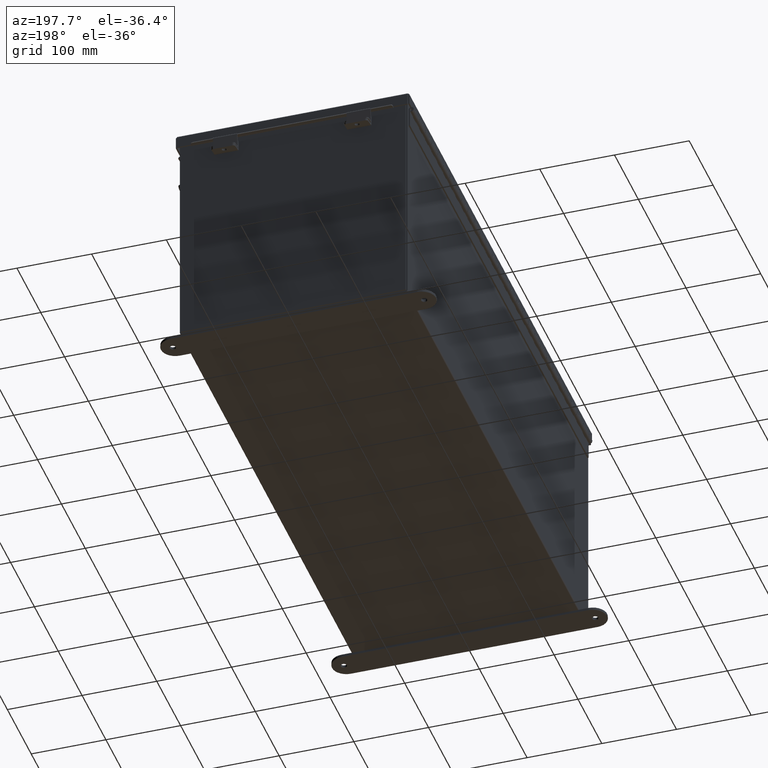
[diagram: clean part render]
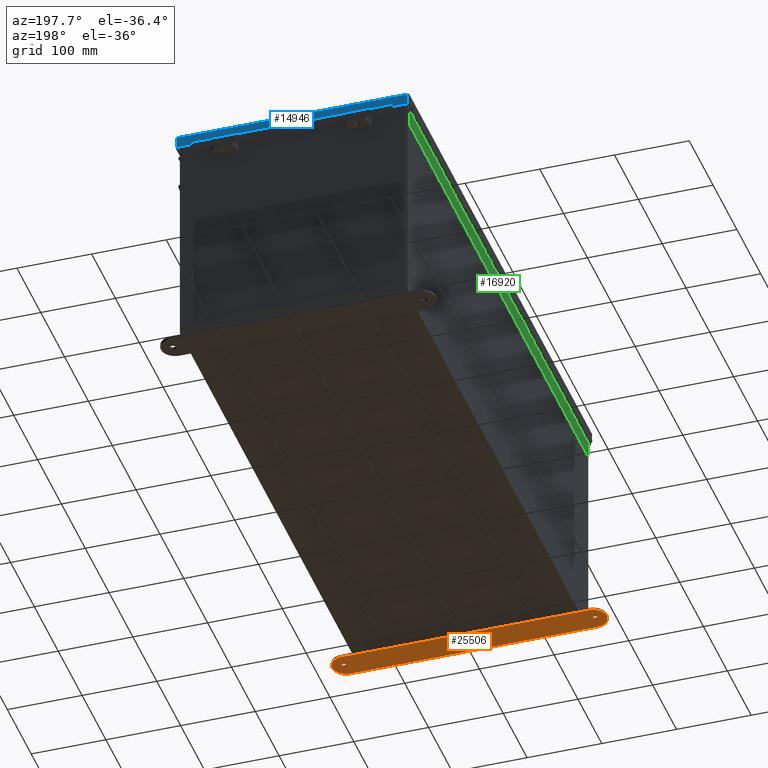
[diagram: same view with three faces highlighted in distinct colors, each labeled with its STEP entity id]
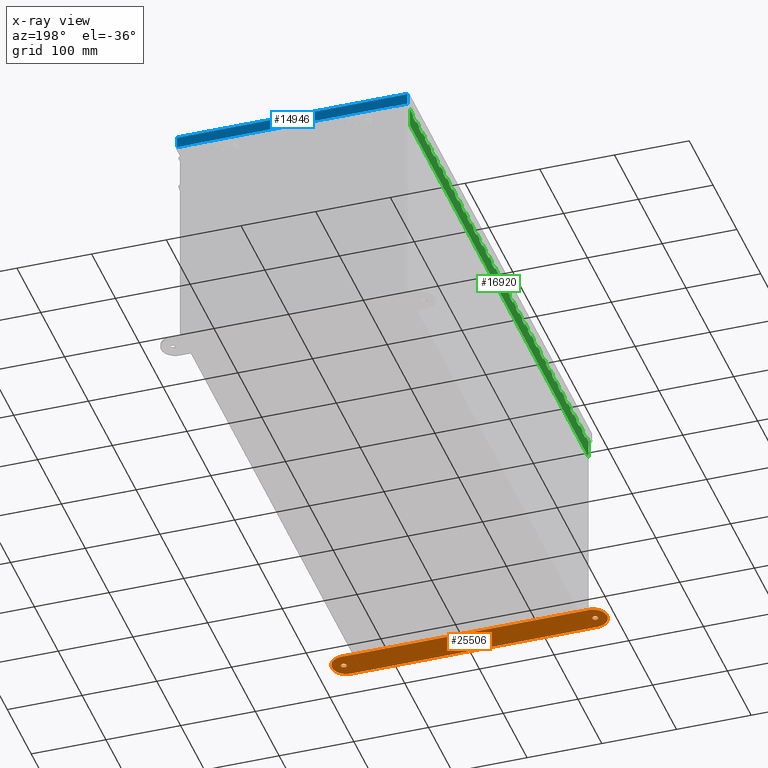
[diagram: x-ray of the same camera — body ghosted, the three highlighted faces saturated]
A machine part, auxiliary view with three faces highlighted in distinct colors.
The next image is the same camera in x-ray (body ghosted, the three faces saturated) — at least one of them is partly hidden behind the body in this view.
Their STEP definitions:

[orange] entity #25506 — the highlighted planar face has unit normal (0, 0, -1).
#44 = ORIENTED_EDGE ( 'NONE', *, *, #2963, .F. ) ;
#262 = AXIS2_PLACEMENT_3D ( 'NONE', #20479, #5874, #9686 ) ;
#297 = CIRCLE ( 'NONE', #2174, 0.7500000000000015500 ) ;
#1091 = VERTEX_POINT ( 'NONE', #18253 ) ;
#1297 = CARTESIAN_POINT ( 'NONE',  ( -6.500000000000000000, -0.3379059350503871900, -0.1345000000000000100 ) ) ;
#1580 = VECTOR ( 'NONE', #23165, 39.37007874015748100 ) ;
#2174 = AXIS2_PLACEMENT_3D ( 'NONE', #13897, #25824, #8136 ) ;
#2223 = LINE ( 'NONE', #1297, #1580 ) ;
#2323 = EDGE_CURVE ( 'NONE', #22335, #13136, #2553, .T. ) ;
#2380 = CARTESIAN_POINT ( 'NONE',  ( 6.500000000000000000, 0.4120940649496132600, -0.1345000000000000100 ) ) ;
#2443 = EDGE_CURVE ( 'NONE', #25596, #25235, #20067, .T. ) ;
#2553 = CIRCLE ( 'NONE', #18437, 0.1564999999999992800 ) ;
#2579 = EDGE_CURVE ( 'NONE', #16152, #18344, #2223, .T. ) ;
#2718 = ORIENTED_EDGE ( 'NONE', *, *, #9053, .T. ) ;
#2963 = EDGE_CURVE ( 'NONE', #18344, #23073, #297, .T. ) ;
#3277 = EDGE_CURVE ( 'NONE', #9058, #1091, #6338, .T. ) ;
#3970 = DIRECTION ( 'NONE',  ( 0.0000000000000000000, 0.0000000000000000000, 1.000000000000000000 ) ) ;
#4092 = CIRCLE ( 'NONE', #14877, 0.1564999999999992800 ) ;
#5433 = EDGE_CURVE ( 'NONE', #25235, #16152, #6881, .T. ) ;
#5621 = AXIS2_PLACEMENT_3D ( 'NONE', #18833, #6825, #20834 ) ;
#5743 = AXIS2_PLACEMENT_3D ( 'NONE', #11120, #3970, #9662 ) ;
#5874 = DIRECTION ( 'NONE',  ( 0.0000000000000000000, 0.0000000000000000000, -1.000000000000000000 ) ) ;
#6176 = DIRECTION ( 'NONE',  ( -1.000000000000000000, 0.0000000000000000000, 0.0000000000000000000 ) ) ;
#6338 = CIRCLE ( 'NONE', #262, 0.1564999999999992800 ) ;
#6825 = DIRECTION ( 'NONE',  ( 0.0000000000000000000, 0.0000000000000000000, -1.000000000000000000 ) ) ;
#6844 = DIRECTION ( 'NONE',  ( 0.0000000000000000000, 0.0000000000000000000, 1.000000000000000000 ) ) ;
#6881 = CIRCLE ( 'NONE', #5743, 0.7499999999999993300 ) ;
#7652 = CARTESIAN_POINT ( 'NONE',  ( 6.500000000000000000, -0.3379059350503894100, -0.1345000000000000100 ) ) ;
#7667 = EDGE_LOOP ( 'NONE', ( #2718, #13967 ) ) ;
#8136 = DIRECTION ( 'NONE',  ( -1.000000000000000000, 0.0000000000000000000, 0.0000000000000000000 ) ) ;
#8434 = PLANE ( 'NONE',  #21727 ) ;
#8450 = ORIENTED_EDGE ( 'NONE', *, *, #2443, .F. ) ;
#8605 = CARTESIAN_POINT ( 'NONE',  ( -6.625000000000000900, 0.4120940649496089300, -0.1345000000000000100 ) ) ;
#8932 = ORIENTED_EDGE ( 'NONE', *, *, #2579, .F. ) ;
#8947 = ORIENTED_EDGE ( 'NONE', *, *, #22780, .F. ) ;
#9053 = EDGE_CURVE ( 'NONE', #13136, #22335, #4092, .T. ) ;
#9058 = VERTEX_POINT ( 'NONE', #20989 ) ;
#9519 = CARTESIAN_POINT ( 'NONE',  ( -6.625000000000000900, 0.4120940649496089300, -0.1345000000000000100 ) ) ;
#9662 = DIRECTION ( 'NONE',  ( 1.000000000000000000, 0.0000000000000000000, 0.0000000000000000000 ) ) ;
#9686 = DIRECTION ( 'NONE',  ( -1.000000000000000000, 0.0000000000000000000, 0.0000000000000000000 ) ) ;
#9910 = ORIENTED_EDGE ( 'NONE', *, *, #3277, .F. ) ;
#10709 = CARTESIAN_POINT ( 'NONE',  ( 6.500000000000000000, 1.162094064949613600, -0.1345000000000000100 ) ) ;
#11021 = ORIENTED_EDGE ( 'NONE', *, *, #17297, .F. ) ;
#11120 = CARTESIAN_POINT ( 'NONE',  ( -6.500000000000000000, 0.4120940649496132600, -0.1345000000000000100 ) ) ;
#12047 = CARTESIAN_POINT ( 'NONE',  ( -6.500000000000000000, 1.162094064949611600, -0.1345000000000000100 ) ) ;
#12453 = DIRECTION ( 'NONE',  ( -1.000000000000000000, 0.0000000000000000000, 0.0000000000000000000 ) ) ;
#13136 = VERTEX_POINT ( 'NONE', #13689 ) ;
#13263 = CARTESIAN_POINT ( 'NONE',  ( -6.781499999999999400, 0.4120940649496089300, -0.1345000000000000100 ) ) ;
#13411 = DIRECTION ( 'NONE',  ( -1.000000000000000000, 0.0000000000000000000, 0.0000000000000000000 ) ) ;
#13689 = CARTESIAN_POINT ( 'NONE',  ( -6.468500000000001500, 0.4120940649496089300, -0.1345000000000000100 ) ) ;
#13897 = CARTESIAN_POINT ( 'NONE',  ( 6.500000000000000000, 0.4120940649496132600, -0.1345000000000000100 ) ) ;
#13967 = ORIENTED_EDGE ( 'NONE', *, *, #2323, .T. ) ;
#14503 = EDGE_LOOP ( 'NONE', ( #44, #8932, #18107, #8450, #8947 ) ) ;
#14770 = VECTOR ( 'NONE', #24238, 39.37007874015748100 ) ;
#14877 = AXIS2_PLACEMENT_3D ( 'NONE', #8605, #25796, #13411 ) ;
#16152 = VERTEX_POINT ( 'NONE', #22472 ) ;
#17297 = EDGE_CURVE ( 'NONE', #1091, #9058, #22011, .T. ) ;
#17395 = EDGE_LOOP ( 'NONE', ( #9910, #11021 ) ) ;
#17526 = FACE_OUTER_BOUND ( 'NONE', #14503, .T. ) ;
#18107 = ORIENTED_EDGE ( 'NONE', *, *, #5433, .F. ) ;
#18253 = CARTESIAN_POINT ( 'NONE',  ( 6.468500000000001500, 0.4120940649496089300, -0.1345000000000000100 ) ) ;
#18344 = VERTEX_POINT ( 'NONE', #7652 ) ;
#18437 = AXIS2_PLACEMENT_3D ( 'NONE', #9519, #19504, #6176 ) ;
#18833 = CARTESIAN_POINT ( 'NONE',  ( 6.625000000000000900, 0.4120940649496089300, -0.1345000000000000100 ) ) ;
#18849 = CARTESIAN_POINT ( 'NONE',  ( 6.500000000000000000, 0.4120940649496132600, -0.1345000000000000100 ) ) ;
#19504 = DIRECTION ( 'NONE',  ( -0.0000000000000000000, -0.0000000000000000000, 1.000000000000000000 ) ) ;
#19543 = CARTESIAN_POINT ( 'NONE',  ( -6.500000000000000000, 1.162094064949611600, -0.1345000000000000100 ) ) ;
#19607 = CARTESIAN_POINT ( 'NONE',  ( 7.250000000000001800, 0.4120940649496132600, -0.1345000000000000100 ) ) ;
#19994 = AXIS2_PLACEMENT_3D ( 'NONE', #18849, #6844, #20857 ) ;
#20067 = LINE ( 'NONE', #12047, #14770 ) ;
#20479 = CARTESIAN_POINT ( 'NONE',  ( 6.625000000000000900, 0.4120940649496089300, -0.1345000000000000100 ) ) ;
#20834 = DIRECTION ( 'NONE',  ( -1.000000000000000000, 0.0000000000000000000, 0.0000000000000000000 ) ) ;
#20857 = DIRECTION ( 'NONE',  ( -1.000000000000000000, 0.0000000000000000000, 0.0000000000000000000 ) ) ;
#20989 = CARTESIAN_POINT ( 'NONE',  ( 6.781499999999999400, 0.4120940649496089300, -0.1345000000000000100 ) ) ;
#21727 = AXIS2_PLACEMENT_3D ( 'NONE', #2380, #24426, #12453 ) ;
#22011 = CIRCLE ( 'NONE', #5621, 0.1564999999999992800 ) ;
#22335 = VERTEX_POINT ( 'NONE', #13263 ) ;
#22472 = CARTESIAN_POINT ( 'NONE',  ( -6.500000000000000000, -0.3379059350503871900, -0.1345000000000000100 ) ) ;
#22780 = EDGE_CURVE ( 'NONE', #23073, #25596, #25221, .T. ) ;
#22845 = FACE_BOUND ( 'NONE', #7667, .T. ) ;
#23073 = VERTEX_POINT ( 'NONE', #19607 ) ;
#23165 = DIRECTION ( 'NONE',  ( 1.000000000000000000, -1.260852920152736700E-016, 0.0000000000000000000 ) ) ;
#24069 = FACE_BOUND ( 'NONE', #17395, .T. ) ;
#24238 = DIRECTION ( 'NONE',  ( -1.000000000000000000, -1.260852920152736700E-016, 0.0000000000000000000 ) ) ;
#24426 = DIRECTION ( 'NONE',  ( 0.0000000000000000000, 0.0000000000000000000, -1.000000000000000000 ) ) ;
#25221 = CIRCLE ( 'NONE', #19994, 0.7500000000000015500 ) ;
#25235 = VERTEX_POINT ( 'NONE', #19543 ) ;
#25506 = ADVANCED_FACE ( 'NONE', ( #17526, #22845, #24069 ), #8434, .T. ) ;
#25596 = VERTEX_POINT ( 'NONE', #10709 ) ;
#25796 = DIRECTION ( 'NONE',  ( -0.0000000000000000000, -0.0000000000000000000, 1.000000000000000000 ) ) ;
#25824 = DIRECTION ( 'NONE',  ( 0.0000000000000000000, 0.0000000000000000000, 1.000000000000000000 ) ) ;

[blue] entity #14946 — the highlighted planar face has unit normal (-0, -1, -0).
#890 = CARTESIAN_POINT ( 'NONE',  ( 5.324478932188136500, 15.15625000000000500, 0.5967115427318804300 ) ) ;
#1179 = DIRECTION ( 'NONE',  ( 1.000000000000000000, 2.123597175838010500E-030, -0.0000000000000000000 ) ) ;
#1640 = CARTESIAN_POINT ( 'NONE',  ( 6.074478932188137400, 15.15625000000000000, 0.01300000000000010700 ) ) ;
#2253 = VECTOR ( 'NONE', #10645, 39.37007874015748100 ) ;
#2369 = FACE_OUTER_BOUND ( 'NONE', #17013, .T. ) ;
#2463 = VECTOR ( 'NONE', #24049, 39.37007874015748100 ) ;
#2471 = DIRECTION ( 'NONE',  ( 0.0000000000000000000, -3.569293475308534800E-015, -1.000000000000000000 ) ) ;
#3224 = EDGE_CURVE ( 'NONE', #19487, #3829, #8867, .T. ) ;
#3253 = LINE ( 'NONE', #5493, #23907 ) ;
#3346 = LINE ( 'NONE', #17681, #7428 ) ;
#3435 = CARTESIAN_POINT ( 'NONE',  ( -6.074478932188134700, 15.15625000000000000, -5.463695987328526600E-014 ) ) ;
#3829 = VERTEX_POINT ( 'NONE', #24810 ) ;
#4358 = VERTEX_POINT ( 'NONE', #7183 ) ;
#4371 = LINE ( 'NONE', #890, #25065 ) ;
#4398 = CARTESIAN_POINT ( 'NONE',  ( -2.134256245050205600E-017, 15.15625000000000000, -5.463695987328526600E-014 ) ) ;
#4741 = VECTOR ( 'NONE', #21470, 39.37007874015748100 ) ;
#5493 = CARTESIAN_POINT ( 'NONE',  ( 6.156249999999999100, 15.15625000000000000, 0.01300000000000010700 ) ) ;
#6101 = EDGE_CURVE ( 'NONE', #8043, #4358, #7788, .T. ) ;
#6259 = ORIENTED_EDGE ( 'NONE', *, *, #7372, .F. ) ;
#6498 = VECTOR ( 'NONE', #22688, 39.37007874015748100 ) ;
#7183 = CARTESIAN_POINT ( 'NONE',  ( 5.324478932188135600, 15.15625000000000200, 0.5967115427318804300 ) ) ;
#7372 = EDGE_CURVE ( 'NONE', #8367, #13601, #3253, .T. ) ;
#7428 = VECTOR ( 'NONE', #17647, 39.37007874015748100 ) ;
#7788 = LINE ( 'NONE', #15906, #2463 ) ;
#8043 = VERTEX_POINT ( 'NONE', #24449 ) ;
#8367 = VERTEX_POINT ( 'NONE', #16990 ) ;
#8819 = CARTESIAN_POINT ( 'NONE',  ( 6.074478932188137400, 15.15625000000000200, 0.6123000000000005100 ) ) ;
#8867 = LINE ( 'NONE', #12630, #2253 ) ;
#9008 = DIRECTION ( 'NONE',  ( -1.000000000000000000, -2.172900982414323700E-030, -0.0000000000000000000 ) ) ;
#10449 = PLANE ( 'NONE',  #23174 ) ;
#10542 = LINE ( 'NONE', #25267, #15861 ) ;
#10645 = DIRECTION ( 'NONE',  ( 1.000000000000000000, 2.173481581964002400E-030, 5.546899479520645900E-018 ) ) ;
#11258 = DIRECTION ( 'NONE',  ( -0.0000000000000000000, 3.569293475308534800E-015, 1.000000000000000000 ) ) ;
#12012 = ORIENTED_EDGE ( 'NONE', *, *, #6101, .F. ) ;
#12461 = LINE ( 'NONE', #22774, #6498 ) ;
#12630 = CARTESIAN_POINT ( 'NONE',  ( -2.454394681807736400E-017, 15.15625000000000200, 0.6123000000000005100 ) ) ;
#12784 = ORIENTED_EDGE ( 'NONE', *, *, #19703, .F. ) ;
#12816 = EDGE_CURVE ( 'NONE', #15569, #3829, #12461, .T. ) ;
#13004 = EDGE_CURVE ( 'NONE', #8043, #21827, #3346, .T. ) ;
#13601 = VERTEX_POINT ( 'NONE', #1640 ) ;
#14165 = CARTESIAN_POINT ( 'NONE',  ( -6.074478932188134700, 15.15625000000000200, 0.6123000000000005100 ) ) ;
#14479 = DIRECTION ( 'NONE',  ( -2.219949720662426200E-030, -1.000000000000000000, 3.569293475308534800E-015 ) ) ;
#14545 = EDGE_CURVE ( 'NONE', #13601, #21827, #10542, .T. ) ;
#14946 = ADVANCED_FACE ( 'NONE', ( #2369 ), #10449, .F. ) ;
#15569 = VERTEX_POINT ( 'NONE', #18568 ) ;
#15861 = VECTOR ( 'NONE', #11258, 39.37007874015748100 ) ;
#15906 = CARTESIAN_POINT ( 'NONE',  ( 5.324478932188136500, 15.15625000000000400, 0.6122999999999982900 ) ) ;
#16014 = LINE ( 'NONE', #3435, #4741 ) ;
#16990 = CARTESIAN_POINT ( 'NONE',  ( -6.074478932188134700, 15.15625000000000000, 0.01300000000000010700 ) ) ;
#17013 = EDGE_LOOP ( 'NONE', ( #12012, #25358, #24920, #6259, #17948, #25469, #22500, #12784 ) ) ;
#17647 = DIRECTION ( 'NONE',  ( 1.000000000000000000, 2.173481581964002400E-030, 5.546899479520645900E-018 ) ) ;
#17681 = CARTESIAN_POINT ( 'NONE',  ( -2.454394681807736400E-017, 15.15625000000000200, 0.6123000000000005100 ) ) ;
#17948 = ORIENTED_EDGE ( 'NONE', *, *, #18299, .T. ) ;
#18299 = EDGE_CURVE ( 'NONE', #8367, #19487, #16014, .T. ) ;
#18568 = CARTESIAN_POINT ( 'NONE',  ( -5.324478932188134700, 15.15625000000000200, 0.5967115427318804300 ) ) ;
#19487 = VERTEX_POINT ( 'NONE', #14165 ) ;
#19703 = EDGE_CURVE ( 'NONE', #4358, #15569, #4371, .T. ) ;
#21470 = DIRECTION ( 'NONE',  ( 0.0000000000000000000, 3.569293475308534800E-015, 1.000000000000000000 ) ) ;
#21827 = VERTEX_POINT ( 'NONE', #8819 ) ;
#22500 = ORIENTED_EDGE ( 'NONE', *, *, #12816, .F. ) ;
#22688 = DIRECTION ( 'NONE',  ( 0.0000000000000000000, -1.401985044024241700E-013, 1.000000000000000000 ) ) ;
#22774 = CARTESIAN_POINT ( 'NONE',  ( -5.324478932188134700, 15.15625000000000500, 0.5967115427318804300 ) ) ;
#23174 = AXIS2_PLACEMENT_3D ( 'NONE', #4398, #14479, #2471 ) ;
#23907 = VECTOR ( 'NONE', #1179, 39.37007874015748100 ) ;
#24049 = DIRECTION ( 'NONE',  ( -7.009925220121361000E-014, 1.401985044024272200E-013, -1.000000000000000000 ) ) ;
#24449 = CARTESIAN_POINT ( 'NONE',  ( 5.324478932188136500, 15.15625000000000200, 0.6123000000000005100 ) ) ;
#24810 = CARTESIAN_POINT ( 'NONE',  ( -5.324478932188135600, 15.15625000000000200, 0.6123000000000005100 ) ) ;
#24920 = ORIENTED_EDGE ( 'NONE', *, *, #14545, .F. ) ;
#25065 = VECTOR ( 'NONE', #9008, 39.37007874015748100 ) ;
#25267 = CARTESIAN_POINT ( 'NONE',  ( 6.074478932188137400, 15.15625000000000000, 0.0000000000000000000 ) ) ;
#25358 = ORIENTED_EDGE ( 'NONE', *, *, #13004, .T. ) ;
#25469 = ORIENTED_EDGE ( 'NONE', *, *, #3224, .T. ) ;

[green] entity #16920 — the highlighted planar face has unit normal (1, -0, 0).
#2 = VECTOR ( 'NONE', #14703, 39.37007874015748100 ) ;
#21 = CARTESIAN_POINT ( 'NONE',  ( 2.404026234424551500E-014, 7.999999999999987600, 0.0000000000000000000 ) ) ;
#45 = CARTESIAN_POINT ( 'NONE',  ( 2.404026234424551500E-014, 8.499999999999985800, 0.0000000000000000000 ) ) ;
#75 = EDGE_CURVE ( 'NONE', #16551, #5004, #19569, .T. ) ;
#79 = ORIENTED_EDGE ( 'NONE', *, *, #4791, .F. ) ;
#128 = LINE ( 'NONE', #13038, #20230 ) ;
#146 = DIRECTION ( 'NONE',  ( -8.013101163815309000E-029, 1.000000000000000000, -1.066893105081175000E-030 ) ) ;
#156 = DIRECTION ( 'NONE',  ( -8.013101163815309000E-029, 1.000000000000000000, -1.066893105081175000E-030 ) ) ;
#233 = DIRECTION ( 'NONE',  ( -4.630250836799224100E-018, 1.000000000000000000, -1.083554230955997500E-030 ) ) ;
#252 = LINE ( 'NONE', #21, #21012 ) ;
#312 = CARTESIAN_POINT ( 'NONE',  ( 0.1365000000000240700, 29.50000000000000000, -1.202013117212275700E-014 ) ) ;
#348 = LINE ( 'NONE', #13259, #11079 ) ;
#469 = ORIENTED_EDGE ( 'NONE', *, *, #25917, .T. ) ;
#487 = ORIENTED_EDGE ( 'NONE', *, *, #8595, .F. ) ;
#510 = EDGE_CURVE ( 'NONE', #10914, #8421, #21439, .T. ) ;
#535 = ORIENTED_EDGE ( 'NONE', *, *, #18955, .T. ) ;
#553 = ORIENTED_EDGE ( 'NONE', *, *, #15879, .F. ) ;
#583 = VERTEX_POINT ( 'NONE', #11970 ) ;
#585 = LINE ( 'NONE', #25503, #20670 ) ;
#610 = CARTESIAN_POINT ( 'NONE',  ( 0.2730000000000241100, -13.00000000000003700, 0.0000000000000000000 ) ) ;
#623 = CARTESIAN_POINT ( 'NONE',  ( 0.0000000000000000000, 20.50000000000000000, 0.0000000000000000000 ) ) ;
#693 = CARTESIAN_POINT ( 'NONE',  ( 0.1365000000000000400, 17.49999999999997200, -1.202013117212275700E-014 ) ) ;
#743 = EDGE_CURVE ( 'NONE', #8231, #18726, #5764, .T. ) ;
#817 = CARTESIAN_POINT ( 'NONE',  ( 0.1365000000000000400, 0.0000000000000000000, 0.0000000000000000000 ) ) ;
#828 = CARTESIAN_POINT ( 'NONE',  ( 2.404026234424551500E-014, 9.499999999999984000, -1.202013117212275700E-014 ) ) ;
#951 = LINE ( 'NONE', #3395, #11037 ) ;
#955 = ORIENTED_EDGE ( 'NONE', *, *, #11070, .T. ) ;
#1021 = VECTOR ( 'NONE', #15564, 39.37007874015748100 ) ;
#1069 = ORIENTED_EDGE ( 'NONE', *, *, #22856, .F. ) ;
#1077 = VECTOR ( 'NONE', #22822, 39.37007874015748100 ) ;
#1111 = EDGE_CURVE ( 'NONE', #14316, #5491, #24205, .T. ) ;
#1144 = DIRECTION ( 'NONE',  ( -1.000000000000000000, 8.013101163815309000E-029, 2.603240987229339000E-029 ) ) ;
#1222 = VERTEX_POINT ( 'NONE', #11133 ) ;
#1223 = VECTOR ( 'NONE', #22111, 39.37007874015748100 ) ;
#1230 = ORIENTED_EDGE ( 'NONE', *, *, #8334, .F. ) ;
#1268 = CARTESIAN_POINT ( 'NONE',  ( 2.404026234424551500E-014, 25.99999999999999600, -1.202013117212275700E-014 ) ) ;
#1311 = CARTESIAN_POINT ( 'NONE',  ( 0.1365000000000000400, 0.0000000000000000000, 0.0000000000000000000 ) ) ;
#1380 = LINE ( 'NONE', #7575, #12081 ) ;
#1403 = LINE ( 'NONE', #3693, #22110 ) ;
#1425 = ORIENTED_EDGE ( 'NONE', *, *, #22403, .F. ) ;
#1446 = CARTESIAN_POINT ( 'NONE',  ( 2.404026234424551500E-014, 5.499999999999987600, -1.202013117212275700E-014 ) ) ;
#1479 = LINE ( 'NONE', #9690, #16426 ) ;
#1516 = LINE ( 'NONE', #24609, #16262 ) ;
#1517 = EDGE_CURVE ( 'NONE', #2907, #1628, #7304, .T. ) ;
#1526 = DIRECTION ( 'NONE',  ( -1.000000000000000000, 8.013101163815309000E-029, 2.603240987229339000E-029 ) ) ;
#1537 = VECTOR ( 'NONE', #9159, 39.37007874015748100 ) ;
#1557 = CARTESIAN_POINT ( 'NONE',  ( 0.1365000000000000400, 0.0000000000000000000, 0.0000000000000000000 ) ) ;
#1579 = EDGE_CURVE ( 'NONE', #22414, #4855, #5395, .T. ) ;
#1604 = ORIENTED_EDGE ( 'NONE', *, *, #8330, .F. ) ;
#1628 = VERTEX_POINT ( 'NONE', #25473 ) ;
#1726 = DIRECTION ( 'NONE',  ( -8.013101163815309000E-029, 1.000000000000000000, -1.066893105081175000E-030 ) ) ;
#1750 = EDGE_CURVE ( 'NONE', #24561, #5559, #16375, .T. ) ;
#1795 = LINE ( 'NONE', #3784, #6513 ) ;
#1859 = LINE ( 'NONE', #17319, #14404 ) ;
#1869 = CARTESIAN_POINT ( 'NONE',  ( 0.2730000000000000800, -24.00000000000005000, 0.0000000000000000000 ) ) ;
#1892 = DIRECTION ( 'NONE',  ( -8.013101163815309000E-029, 1.000000000000000000, -1.066893105081175000E-030 ) ) ;
#1992 = DIRECTION ( 'NONE',  ( -8.013101163815309000E-029, 1.000000000000000000, -1.066893105081175000E-030 ) ) ;
#2105 = DIRECTION ( 'NONE',  ( -1.000000000000000000, 8.013101163815309000E-029, 2.603240987229339000E-029 ) ) ;
#2114 = CARTESIAN_POINT ( 'NONE',  ( 0.1365000000000000400, 0.0000000000000000000, 0.0000000000000000000 ) ) ;
#2143 = VECTOR ( 'NONE', #3846, 39.37007874015748100 ) ;
#2170 = CARTESIAN_POINT ( 'NONE',  ( 0.1365000000000000400, 0.0000000000000000000, 0.0000000000000000000 ) ) ;
#2181 = CARTESIAN_POINT ( 'NONE',  ( 0.2730000000000241100, 8.999999999999987600, -1.202013117212275700E-014 ) ) ;
#2191 = CARTESIAN_POINT ( 'NONE',  ( 0.2730000000000000800, 13.49999999999997200, -1.202013117212275700E-014 ) ) ;
#2202 = CARTESIAN_POINT ( 'NONE',  ( 0.1365000000000000400, 24.49999999999999600, 0.0000000000000000000 ) ) ;
#2225 = ORIENTED_EDGE ( 'NONE', *, *, #21314, .F. ) ;
#2236 = VECTOR ( 'NONE', #6621, 39.37007874015748100 ) ;
#2252 = VERTEX_POINT ( 'NONE', #2665 ) ;
#2254 = EDGE_CURVE ( 'NONE', #23233, #8140, #3786, .T. ) ;
#2267 = ORIENTED_EDGE ( 'NONE', *, *, #75, .T. ) ;
#2277 = CARTESIAN_POINT ( 'NONE',  ( 0.1365000000000000400, 0.0000000000000000000, 0.0000000000000000000 ) ) ;
#2280 = ORIENTED_EDGE ( 'NONE', *, *, #19176, .F. ) ;
#2292 = CARTESIAN_POINT ( 'NONE',  ( 2.404026234424551500E-014, 26.49999999999999600, 0.0000000000000000000 ) ) ;
#2379 = VERTEX_POINT ( 'NONE', #4826 ) ;
#2405 = ORIENTED_EDGE ( 'NONE', *, *, #4914, .T. ) ;
#2423 = DIRECTION ( 'NONE',  ( -1.000000000000000000, 8.013101163815309000E-029, 2.603240987229339000E-029 ) ) ;
#2442 = DIRECTION ( 'NONE',  ( 1.000000000000000000, -8.013101163815309000E-029, -2.603240987229339000E-029 ) ) ;
#2478 = EDGE_CURVE ( 'NONE', #12222, #2845, #8828, .T. ) ;
#2499 = VECTOR ( 'NONE', #5772, 39.37007874015748100 ) ;
#2524 = EDGE_CURVE ( 'NONE', #8973, #12700, #3467, .T. ) ;
#2614 = CARTESIAN_POINT ( 'NONE',  ( 0.0000000000000000000, 14.99999999999997500, 0.0000000000000000000 ) ) ;
#2630 = VERTEX_POINT ( 'NONE', #21442 ) ;
#2665 = CARTESIAN_POINT ( 'NONE',  ( 0.2730000000000000800, 23.99999999999999600, 0.0000000000000000000 ) ) ;
#2762 = VERTEX_POINT ( 'NONE', #15223 ) ;
#2769 = VERTEX_POINT ( 'NONE', #17506 ) ;
#2784 = ORIENTED_EDGE ( 'NONE', *, *, #3874, .F. ) ;
#2799 = ORIENTED_EDGE ( 'NONE', *, *, #3288, .T. ) ;
#2816 = CARTESIAN_POINT ( 'NONE',  ( 0.1365000000000000400, 23.49999999999999600, -1.202013117212275700E-014 ) ) ;
#2845 = VERTEX_POINT ( 'NONE', #24128 ) ;
#2858 = VECTOR ( 'NONE', #22678, 39.37007874015748100 ) ;
#2903 = DIRECTION ( 'NONE',  ( -1.000000000000000000, 8.013101163815309000E-029, 2.603240987229339000E-029 ) ) ;
#2907 = VERTEX_POINT ( 'NONE', #8418 ) ;
#2912 = EDGE_CURVE ( 'NONE', #22082, #3783, #951, .T. ) ;
#2930 = LINE ( 'NONE', #3514, #23579 ) ;
#2958 = CARTESIAN_POINT ( 'NONE',  ( 0.1365000000000000400, 0.0000000000000000000, 0.0000000000000000000 ) ) ;
#3012 = ORIENTED_EDGE ( 'NONE', *, *, #6780, .T. ) ;
#3111 = EDGE_CURVE ( 'NONE', #7438, #15927, #25455, .T. ) ;
#3150 = DIRECTION ( 'NONE',  ( -1.000000000000000000, 8.013101163815309000E-029, 2.603240987229339000E-029 ) ) ;
#3159 = VECTOR ( 'NONE', #1526, 39.37007874015748100 ) ;
#3163 = LINE ( 'NONE', #8614, #23212 ) ;
#3192 = VECTOR ( 'NONE', #156, 39.37007874015748100 ) ;
#3248 = LINE ( 'NONE', #4424, #18608 ) ;
#3256 = CARTESIAN_POINT ( 'NONE',  ( 0.2730000000000000800, -19.00000000000004300, -1.202013117212275700E-014 ) ) ;
#3271 = VECTOR ( 'NONE', #15083, 39.37007874015748100 ) ;
#3288 = EDGE_CURVE ( 'NONE', #24561, #16551, #21050, .T. ) ;
#3306 = DIRECTION ( 'NONE',  ( -8.013101163815309000E-029, 1.000000000000000000, -1.066893105081175000E-030 ) ) ;
#3344 = VERTEX_POINT ( 'NONE', #13793 ) ;
#3349 = ORIENTED_EDGE ( 'NONE', *, *, #22017, .F. ) ;
#3381 = VERTEX_POINT ( 'NONE', #15641 ) ;
#3395 = CARTESIAN_POINT ( 'NONE',  ( 0.2730000000000219500, -11.00000000000004800, -1.202013117212275700E-014 ) ) ;
#3406 = EDGE_CURVE ( 'NONE', #8479, #12383, #13832, .T. ) ;
#3436 = AXIS2_PLACEMENT_3D ( 'NONE', #19455, #9478, #23467 ) ;
#3445 = EDGE_CURVE ( 'NONE', #10914, #3344, #17293, .T. ) ;
#3464 = ORIENTED_EDGE ( 'NONE', *, *, #13058, .F. ) ;
#3467 = LINE ( 'NONE', #45, #10705 ) ;
#3471 = VECTOR ( 'NONE', #6800, 39.37007874015748100 ) ;
#3513 = VERTEX_POINT ( 'NONE', #6004 ) ;
#3514 = CARTESIAN_POINT ( 'NONE',  ( 0.1365000000000000400, 0.0000000000000000000, 0.0000000000000000000 ) ) ;
#3560 = ORIENTED_EDGE ( 'NONE', *, *, #17686, .F. ) ;
#3561 = DIRECTION ( 'NONE',  ( -1.000000000000000000, 8.013101163815309000E-029, 2.603240987229339000E-029 ) ) ;
#3570 = DIRECTION ( 'NONE',  ( -8.013101163815309000E-029, 1.000000000000000000, -1.066893105081175000E-030 ) ) ;
#3599 = CARTESIAN_POINT ( 'NONE',  ( 0.1365000000000000400, 11.49999999999997300, -1.202013117212275700E-014 ) ) ;
#3666 = VECTOR ( 'NONE', #18188, 39.37007874015748100 ) ;
#3693 = CARTESIAN_POINT ( 'NONE',  ( 2.404026234424551500E-014, 4.499999999999998200, 0.0000000000000000000 ) ) ;
#3704 = LINE ( 'NONE', #24961, #19070 ) ;
#3724 = CARTESIAN_POINT ( 'NONE',  ( 0.2730000000000000800, 22.00000000000000000, 0.0000000000000000000 ) ) ;
#3731 = CARTESIAN_POINT ( 'NONE',  ( 0.0000000000000000000, 2.999999999999997300, 0.0000000000000000000 ) ) ;
#3773 = EDGE_CURVE ( 'NONE', #21455, #23233, #20366, .T. ) ;
#3783 = VERTEX_POINT ( 'NONE', #15442 ) ;
#3784 = CARTESIAN_POINT ( 'NONE',  ( 2.404026234424551500E-014, 28.49999999999999600, 0.0000000000000000000 ) ) ;
#3786 = LINE ( 'NONE', #20899, #13824 ) ;
#3846 = DIRECTION ( 'NONE',  ( -8.013101163815309000E-029, 1.000000000000000000, -1.066893105081175000E-030 ) ) ;
#3874 = EDGE_CURVE ( 'NONE', #9257, #2379, #13182, .T. ) ;
#3887 = ORIENTED_EDGE ( 'NONE', *, *, #17214, .T. ) ;
#3895 = VERTEX_POINT ( 'NONE', #17494 ) ;
#3900 = CARTESIAN_POINT ( 'NONE',  ( 0.2730000000000000800, 20.99999999999999600, -1.202013117212275700E-014 ) ) ;
#3915 = ORIENTED_EDGE ( 'NONE', *, *, #1579, .F. ) ;
#3943 = ORIENTED_EDGE ( 'NONE', *, *, #13151, .F. ) ;
#3961 = CARTESIAN_POINT ( 'NONE',  ( 0.0000000000000000000, 1.499999999999996700, -1.202013117212275700E-014 ) ) ;
#3973 = VERTEX_POINT ( 'NONE', #15676 ) ;
#4008 = CARTESIAN_POINT ( 'NONE',  ( 0.1365000000000000400, 3.499999999999995100, -1.202013117212275700E-014 ) ) ;
#4028 = LINE ( 'NONE', #11955, #14722 ) ;
#4066 = CARTESIAN_POINT ( 'NONE',  ( 0.2730000000000000800, -4.000000000000000900, 0.0000000000000000000 ) ) ;
#4069 = ORIENTED_EDGE ( 'NONE', *, *, #5429, .F. ) ;
#4081 = CARTESIAN_POINT ( 'NONE',  ( 0.0000000000000000000, 1.999999999999998400, -1.202013117212275700E-014 ) ) ;
#4093 = CARTESIAN_POINT ( 'NONE',  ( 0.1365000000000240700, 7.999999999999987600, 0.0000000000000000000 ) ) ;
#4115 = LINE ( 'NONE', #14192, #24156 ) ;
#4160 = CARTESIAN_POINT ( 'NONE',  ( 0.2730000000000000800, -18.00000000000004600, 0.0000000000000000000 ) ) ;
#4199 = LINE ( 'NONE', #15322, #20808 ) ;
#4207 = VERTEX_POINT ( 'NONE', #26030 ) ;
#4218 = VECTOR ( 'NONE', #233, 39.37007874015748100 ) ;
#4240 = VECTOR ( 'NONE', #13594, 39.37007874015748100 ) ;
#4245 = EDGE_CURVE ( 'NONE', #8343, #22761, #22247, .T. ) ;
#4259 = ORIENTED_EDGE ( 'NONE', *, *, #12092, .F. ) ;
#4338 = DIRECTION ( 'NONE',  ( -1.000000000000000000, 8.013101163815309000E-029, 2.603240987229339000E-029 ) ) ;
#4362 = ORIENTED_EDGE ( 'NONE', *, *, #2912, .F. ) ;
#4368 = ORIENTED_EDGE ( 'NONE', *, *, #19290, .F. ) ;
#4369 = DIRECTION ( 'NONE',  ( -1.000000000000000000, 8.013101163815309000E-029, 2.603240987229339000E-029 ) ) ;
#4378 = LINE ( 'NONE', #11758, #11615 ) ;
#4385 = CARTESIAN_POINT ( 'NONE',  ( 0.1365000000000000400, 0.0000000000000000000, 0.0000000000000000000 ) ) ;
#4389 = DIRECTION ( 'NONE',  ( -8.013101163815309000E-029, 1.000000000000000000, -1.066893105081175000E-030 ) ) ;
#4424 = CARTESIAN_POINT ( 'NONE',  ( 0.1365000000000000400, 0.0000000000000000000, 0.0000000000000000000 ) ) ;
#4435 = VECTOR ( 'NONE', #18723, 39.37007874015748100 ) ;
#4451 = LINE ( 'NONE', #24118, #14483 ) ;
#4457 = ORIENTED_EDGE ( 'NONE', *, *, #9750, .T. ) ;
#4521 = VERTEX_POINT ( 'NONE', #13589 ) ;
#4573 = EDGE_CURVE ( 'NONE', #22427, #2769, #4705, .T. ) ;
#4605 = LINE ( 'NONE', #25977, #9933 ) ;
#4675 = EDGE_CURVE ( 'NONE', #7438, #7805, #3163, .T. ) ;
#4688 = VECTOR ( 'NONE', #3570, 39.37007874015748100 ) ;
#4701 = CARTESIAN_POINT ( 'NONE',  ( 0.1365000000000000400, 23.99999999999999600, 0.0000000000000000000 ) ) ;
#4705 = LINE ( 'NONE', #23756, #25731 ) ;
#4718 = DIRECTION ( 'NONE',  ( -1.000000000000000000, 8.013101163815309000E-029, 2.603240987229339000E-029 ) ) ;
#4791 = EDGE_CURVE ( 'NONE', #22404, #21694, #10695, .T. ) ;
#4792 = VECTOR ( 'NONE', #24418, 39.37007874015748100 ) ;
#4816 = CARTESIAN_POINT ( 'NONE',  ( 0.2730000000000241100, 6.999999999999988500, 0.0000000000000000000 ) ) ;
#4826 = CARTESIAN_POINT ( 'NONE',  ( 0.1365000000000000400, 12.99999999999997300, -1.202013117212275700E-014 ) ) ;
#4855 = VERTEX_POINT ( 'NONE', #20509 ) ;
#4864 = EDGE_CURVE ( 'NONE', #5631, #5711, #24768, .T. ) ;
#4879 = VERTEX_POINT ( 'NONE', #693 ) ;
#4914 = EDGE_CURVE ( 'NONE', #22387, #2630, #18824, .T. ) ;
#4932 = LINE ( 'NONE', #22121, #3666 ) ;
#4958 = LINE ( 'NONE', #9221, #25628 ) ;
#5004 = VERTEX_POINT ( 'NONE', #10816 ) ;
#5018 = DIRECTION ( 'NONE',  ( -1.000000000000000000, 8.013101163815309000E-029, 2.603240987229339000E-029 ) ) ;
#5052 = CARTESIAN_POINT ( 'NONE',  ( 0.2730000000000000800, 12.99999999999997300, -1.202013117212275700E-014 ) ) ;
#5153 = CARTESIAN_POINT ( 'NONE',  ( 0.1365000000000240700, 6.499999999999986700, -1.202013117212275700E-014 ) ) ;
#5173 = LINE ( 'NONE', #2958, #25871 ) ;
#5204 = EDGE_CURVE ( 'NONE', #24060, #20112, #6597, .T. ) ;
#5205 = CARTESIAN_POINT ( 'NONE',  ( 0.2730000000000241100, 28.99999999999999600, -1.202013117212275700E-014 ) ) ;
#5217 = VECTOR ( 'NONE', #22658, 39.37007874015748100 ) ;
#5221 = CARTESIAN_POINT ( 'NONE',  ( 0.2730000000000000800, 20.50000000000000000, 0.0000000000000000000 ) ) ;
#5229 = ORIENTED_EDGE ( 'NONE', *, *, #23409, .F. ) ;
#5247 = CARTESIAN_POINT ( 'NONE',  ( 0.1365000000000000400, 10.49999999999997200, -1.202013117212275700E-014 ) ) ;
#5312 = CARTESIAN_POINT ( 'NONE',  ( 0.2730000000000000800, 19.99999999999999600, 0.0000000000000000000 ) ) ;
#5387 = EDGE_CURVE ( 'NONE', #14083, #12640, #24090, .T. ) ;
#5389 = VECTOR ( 'NONE', #11051, 39.37007874015748100 ) ;
#5395 = LINE ( 'NONE', #19227, #4792 ) ;
#5425 = CARTESIAN_POINT ( 'NONE',  ( 0.0000000000000000000, 10.49999999999997200, 0.0000000000000000000 ) ) ;
#5429 = EDGE_CURVE ( 'NONE', #12575, #7240, #12849, .T. ) ;
#5437 = PLANE ( 'NONE',  #3436 ) ;
#5441 = ORIENTED_EDGE ( 'NONE', *, *, #8706, .T. ) ;
#5468 = ORIENTED_EDGE ( 'NONE', *, *, #2524, .T. ) ;
#5491 = VERTEX_POINT ( 'NONE', #17796 ) ;
#5504 = CARTESIAN_POINT ( 'NONE',  ( 0.2730000000000000800, 24.49999999999999600, 0.0000000000000000000 ) ) ;
#5545 = DIRECTION ( 'NONE',  ( -1.000000000000000000, 8.013101163815309000E-029, 2.603240987229339000E-029 ) ) ;
#5550 = CARTESIAN_POINT ( 'NONE',  ( 0.2730000000000000800, 18.99999999999997200, 0.0000000000000000000 ) ) ;
#5559 = VERTEX_POINT ( 'NONE', #13008 ) ;
#5561 = ORIENTED_EDGE ( 'NONE', *, *, #8800, .F. ) ;
#5573 = VECTOR ( 'NONE', #13844, 39.37007874015748100 ) ;
#5615 = DIRECTION ( 'NONE',  ( -8.013101163815309000E-029, 1.000000000000000000, -1.066893105081175000E-030 ) ) ;
#5631 = VERTEX_POINT ( 'NONE', #23509 ) ;
#5637 = DIRECTION ( 'NONE',  ( -1.000000000000000000, 8.013101163815309000E-029, 2.603240987229339000E-029 ) ) ;
#5711 = VERTEX_POINT ( 'NONE', #13600 ) ;
#5718 = LINE ( 'NONE', #15646, #15738 ) ;
#5750 = VERTEX_POINT ( 'NONE', #19406 ) ;
#5752 = EDGE_CURVE ( 'NONE', #9393, #14853, #25357, .T. ) ;
#5764 = LINE ( 'NONE', #6801, #6399 ) ;
#5772 = DIRECTION ( 'NONE',  ( -1.000000000000000000, 8.013101163815309000E-029, 2.603240987229339000E-029 ) ) ;
#5798 = ORIENTED_EDGE ( 'NONE', *, *, #9957, .T. ) ;
#5856 = VECTOR ( 'NONE', #10579, 39.37007874015748100 ) ;
#5902 = ORIENTED_EDGE ( 'NONE', *, *, #15671, .F. ) ;
#5919 = VERTEX_POINT ( 'NONE', #9871 ) ;
#5942 = CARTESIAN_POINT ( 'NONE',  ( 0.2730000000000241100, 28.49999999999999600, 0.0000000000000000000 ) ) ;
#5957 = VERTEX_POINT ( 'NONE', #4093 ) ;
#5964 = CARTESIAN_POINT ( 'NONE',  ( 0.2730000000000241100, 27.49999999999999600, 0.0000000000000000000 ) ) ;
#5966 = DIRECTION ( 'NONE',  ( -8.013101163815309000E-029, 1.000000000000000000, -1.066893105081175000E-030 ) ) ;
#5993 = ORIENTED_EDGE ( 'NONE', *, *, #6362, .F. ) ;
#5995 = DIRECTION ( 'NONE',  ( -1.000000000000000000, 8.013101163815309000E-029, 2.603240987229339000E-029 ) ) ;
#6004 = CARTESIAN_POINT ( 'NONE',  ( 0.2730000000000241100, 9.499999999999984000, -1.202013117212275700E-014 ) ) ;
#6120 = DIRECTION ( 'NONE',  ( -1.000000000000000000, 8.013101163815309000E-029, 2.603240987229339000E-029 ) ) ;
#6156 = CARTESIAN_POINT ( 'NONE',  ( 0.0000000000000000000, 16.99999999999997500, -1.202013117212275700E-014 ) ) ;
#6223 = ORIENTED_EDGE ( 'NONE', *, *, #19812, .F. ) ;
#6227 = DIRECTION ( 'NONE',  ( -8.013101163815309000E-029, 1.000000000000000000, -1.066893105081175000E-030 ) ) ;
#6265 = DIRECTION ( 'NONE',  ( -1.000000000000000000, 8.013101163815309000E-029, 2.603240987229339000E-029 ) ) ;
#6339 = ORIENTED_EDGE ( 'NONE', *, *, #3406, .T. ) ;
#6362 = EDGE_CURVE ( 'NONE', #23088, #3344, #12797, .T. ) ;
#6371 = ORIENTED_EDGE ( 'NONE', *, *, #15544, .F. ) ;
#6379 = DIRECTION ( 'NONE',  ( -8.013101163815309000E-029, 1.000000000000000000, -1.066893105081175000E-030 ) ) ;
#6399 = VECTOR ( 'NONE', #12445, 39.37007874015748100 ) ;
#6401 = CARTESIAN_POINT ( 'NONE',  ( 0.2730000000000000800, -21.00000000000005000, 0.0000000000000000000 ) ) ;
#6409 = EDGE_CURVE ( 'NONE', #14732, #14283, #18115, .T. ) ;
#6446 = CARTESIAN_POINT ( 'NONE',  ( 0.2730000000000000800, 23.00000000000000000, 0.0000000000000000000 ) ) ;
#6460 = CARTESIAN_POINT ( 'NONE',  ( 0.2730000000000000800, -8.000000000000046200, 0.0000000000000000000 ) ) ;
#6475 = EDGE_CURVE ( 'NONE', #8231, #2252, #1479, .T. ) ;
#6513 = VECTOR ( 'NONE', #4338, 39.37007874015748100 ) ;
#6597 = LINE ( 'NONE', #19574, #1223 ) ;
#6613 = EDGE_CURVE ( 'NONE', #16245, #25440, #3248, .T. ) ;
#6621 = DIRECTION ( 'NONE',  ( -1.000000000000000000, 8.013101163815309000E-029, 2.603240987229339000E-029 ) ) ;
#6726 = VECTOR ( 'NONE', #21292, 39.37007874015748100 ) ;
#6734 = CARTESIAN_POINT ( 'NONE',  ( 0.0000000000000000000, 0.9999999999999992200, -1.202013117212275700E-014 ) ) ;
#6751 = VERTEX_POINT ( 'NONE', #18002 ) ;
#6780 = EDGE_CURVE ( 'NONE', #3973, #5919, #17089, .T. ) ;
#6783 = VERTEX_POINT ( 'NONE', #9836 ) ;
#6800 = DIRECTION ( 'NONE',  ( -1.000000000000000000, 8.013101163815309000E-029, 2.603240987229339000E-029 ) ) ;
#6801 = CARTESIAN_POINT ( 'NONE',  ( 0.0000000000000000000, 23.49999999999999600, 0.0000000000000000000 ) ) ;
#6835 = LINE ( 'NONE', #9828, #5573 ) ;
#6885 = VECTOR ( 'NONE', #13479, 39.37007874015748100 ) ;
#6949 = VECTOR ( 'NONE', #22929, 39.37007874015748100 ) ;
#6985 = CARTESIAN_POINT ( 'NONE',  ( 0.0000000000000000000, 18.49999999999997200, 0.0000000000000000000 ) ) ;
#7021 = LINE ( 'NONE', #7608, #1021 ) ;
#7064 = CARTESIAN_POINT ( 'NONE',  ( 0.2730000000000000800, 18.49999999999997200, 0.0000000000000000000 ) ) ;
#7076 = VERTEX_POINT ( 'NONE', #20937 ) ;
#7091 = EDGE_CURVE ( 'NONE', #25140, #7275, #4199, .T. ) ;
#7143 = ORIENTED_EDGE ( 'NONE', *, *, #14132, .F. ) ;
#7240 = VERTEX_POINT ( 'NONE', #23582 ) ;
#7275 = VERTEX_POINT ( 'NONE', #3599 ) ;
#7304 = LINE ( 'NONE', #13790, #16712 ) ;
#7314 = EDGE_CURVE ( 'NONE', #8421, #24896, #10473, .T. ) ;
#7332 = ORIENTED_EDGE ( 'NONE', *, *, #5752, .F. ) ;
#7416 = VECTOR ( 'NONE', #2423, 39.37007874015748100 ) ;
#7438 = VERTEX_POINT ( 'NONE', #13962 ) ;
#7450 = VECTOR ( 'NONE', #3306, 39.37007874015748100 ) ;
#7465 = DIRECTION ( 'NONE',  ( -8.013101163815309000E-029, 1.000000000000000000, -1.066893105081175000E-030 ) ) ;
#7471 = DIRECTION ( 'NONE',  ( -1.000000000000000000, 8.013101163815309000E-029, 2.603240987229339000E-029 ) ) ;
#7497 = DIRECTION ( 'NONE',  ( -8.013101163815309000E-029, 1.000000000000000000, -1.066893105081175000E-030 ) ) ;
#7513 = ORIENTED_EDGE ( 'NONE', *, *, #16995, .F. ) ;
#7574 = ORIENTED_EDGE ( 'NONE', *, *, #15875, .T. ) ;
#7575 = CARTESIAN_POINT ( 'NONE',  ( 0.1365000000000000400, 0.0000000000000000000, 0.0000000000000000000 ) ) ;
#7608 = CARTESIAN_POINT ( 'NONE',  ( 2.404026234424551500E-014, 6.999999999999988500, 0.0000000000000000000 ) ) ;
#7625 = LINE ( 'NONE', #7648, #17649 ) ;
#7631 = CARTESIAN_POINT ( 'NONE',  ( 0.0000000000000000000, 22.49999999999999600, 0.0000000000000000000 ) ) ;
#7637 = VECTOR ( 'NONE', #5966, 39.37007874015748100 ) ;
#7648 = CARTESIAN_POINT ( 'NONE',  ( 0.2730000000000000800, -6.000000000000047100, 0.0000000000000000000 ) ) ;
#7666 = EDGE_CURVE ( 'NONE', #17049, #25105, #13578, .T. ) ;
#7689 = ORIENTED_EDGE ( 'NONE', *, *, #19627, .F. ) ;
#7704 = CARTESIAN_POINT ( 'NONE',  ( 0.0000000000000000000, 17.49999999999997200, -1.202013117212275700E-014 ) ) ;
#7728 = VERTEX_POINT ( 'NONE', #11247 ) ;
#7776 = EDGE_CURVE ( 'NONE', #15832, #14114, #10448, .T. ) ;
#7805 = VERTEX_POINT ( 'NONE', #15531 ) ;
#7806 = CARTESIAN_POINT ( 'NONE',  ( 0.1365000000000000400, 3.999999999999996900, 0.0000000000000000000 ) ) ;
#7824 = LINE ( 'NONE', #7704, #2499 ) ;
#7891 = VECTOR ( 'NONE', #6379, 39.37007874015748100 ) ;
#7931 = CARTESIAN_POINT ( 'NONE',  ( 2.404026234424551500E-014, 5.999999999999989300, -1.202013117212275700E-014 ) ) ;
#7973 = EDGE_CURVE ( 'NONE', #15832, #21638, #16716, .T. ) ;
#8021 = ORIENTED_EDGE ( 'NONE', *, *, #24375, .F. ) ;
#8092 = ORIENTED_EDGE ( 'NONE', *, *, #17656, .T. ) ;
#8140 = VERTEX_POINT ( 'NONE', #11719 ) ;
#8164 = DIRECTION ( 'NONE',  ( -1.000000000000000000, 8.013101163815309000E-029, 2.603240987229339000E-029 ) ) ;
#8181 = LINE ( 'NONE', #7631, #2858 ) ;
#8190 = DIRECTION ( 'NONE',  ( -8.013101163815309000E-029, 1.000000000000000000, -1.066893105081175000E-030 ) ) ;
#8224 = CARTESIAN_POINT ( 'NONE',  ( 0.2730000000000241100, 8.499999999999985800, 0.0000000000000000000 ) ) ;
#8231 = VERTEX_POINT ( 'NONE', #11206 ) ;
#8241 = EDGE_CURVE ( 'NONE', #2379, #18030, #5718, .T. ) ;
#8278 = CARTESIAN_POINT ( 'NONE',  ( 0.1365000000000240700, 8.999999999999987600, -1.202013117212275700E-014 ) ) ;
#8301 = ORIENTED_EDGE ( 'NONE', *, *, #25890, .F. ) ;
#8330 = EDGE_CURVE ( 'NONE', #5491, #5919, #24500, .T. ) ;
#8334 = EDGE_CURVE ( 'NONE', #3381, #12575, #23854, .T. ) ;
#8343 = VERTEX_POINT ( 'NONE', #5205 ) ;
#8356 = ORIENTED_EDGE ( 'NONE', *, *, #18020, .F. ) ;
#8358 = CARTESIAN_POINT ( 'NONE',  ( 0.2730000000000000800, -28.00000000000001100, 0.0000000000000000000 ) ) ;
#8408 = VECTOR ( 'NONE', #2903, 39.37007874015748100 ) ;
#8418 = CARTESIAN_POINT ( 'NONE',  ( 0.2730000000000219500, 9.999999999999976900, 0.0000000000000000000 ) ) ;
#8421 = VERTEX_POINT ( 'NONE', #25438 ) ;
#8477 = CARTESIAN_POINT ( 'NONE',  ( 0.2730000000000000800, 1.999999999999998400, 0.0000000000000000000 ) ) ;
#8479 = VERTEX_POINT ( 'NONE', #22958 ) ;
#8507 = CARTESIAN_POINT ( 'NONE',  ( 0.2730000000000000800, 0.0000000000000000000, 0.0000000000000000000 ) ) ;
#8527 = VERTEX_POINT ( 'NONE', #20446 ) ;
#8542 = VECTOR ( 'NONE', #22926, 39.37007874015748100 ) ;
#8572 = CARTESIAN_POINT ( 'NONE',  ( 0.0000000000000000000, 3.999999999999996900, 0.0000000000000000000 ) ) ;
#8595 = EDGE_CURVE ( 'NONE', #3783, #17127, #4115, .T. ) ;
#8614 = CARTESIAN_POINT ( 'NONE',  ( 0.0000000000000000000, 21.49999999999999600, -1.202013117212275700E-014 ) ) ;
#8616 = ORIENTED_EDGE ( 'NONE', *, *, #23781, .F. ) ;
#8623 = LINE ( 'NONE', #12988, #3271 ) ;
#8643 = ORIENTED_EDGE ( 'NONE', *, *, #13344, .F. ) ;
#8706 = EDGE_CURVE ( 'NONE', #24057, #7728, #17610, .T. ) ;
#8725 = EDGE_CURVE ( 'NONE', #4207, #583, #21673, .T. ) ;
#8733 = CARTESIAN_POINT ( 'NONE',  ( 0.2730000000000241100, 7.999999999999987600, 0.0000000000000000000 ) ) ;
#8772 = VECTOR ( 'NONE', #5995, 39.37007874015748100 ) ;
#8800 = EDGE_CURVE ( 'NONE', #20065, #4521, #9764, .T. ) ;
#8818 = VECTOR ( 'NONE', #19007, 39.37007874015748100 ) ;
#8828 = LINE ( 'NONE', #2277, #19450 ) ;
#8833 = CARTESIAN_POINT ( 'NONE',  ( 0.2730000000000000800, 16.99999999999997500, -1.202013117212275700E-014 ) ) ;
#8835 = LINE ( 'NONE', #20259, #3471 ) ;
#8886 = DIRECTION ( 'NONE',  ( -1.000000000000000000, 8.013101163815309000E-029, 2.603240987229339000E-029 ) ) ;
#8911 = CARTESIAN_POINT ( 'NONE',  ( 0.2730000000000000800, -27.00000000000000000, -1.202013117212275700E-014 ) ) ;
#8957 = CARTESIAN_POINT ( 'NONE',  ( 2.404026234424551500E-014, 8.999999999999987600, -1.202013117212275700E-014 ) ) ;
#8973 = VERTEX_POINT ( 'NONE', #8224 ) ;
#9072 = EDGE_CURVE ( 'NONE', #15815, #9798, #8835, .T. ) ;
#9116 = DIRECTION ( 'NONE',  ( -1.000000000000000000, 8.013101163815309000E-029, 2.603240987229339000E-029 ) ) ;
#9124 = ORIENTED_EDGE ( 'NONE', *, *, #19980, .F. ) ;
#9159 = DIRECTION ( 'NONE',  ( -1.000000000000000000, 8.013101163815309000E-029, 2.603240987229339000E-029 ) ) ;
#9162 = LINE ( 'NONE', #20183, #3192 ) ;
#9185 = LINE ( 'NONE', #24326, #23258 ) ;
#9221 = CARTESIAN_POINT ( 'NONE',  ( 0.0000000000000000000, 11.99999999999997500, 0.0000000000000000000 ) ) ;
#9257 = VERTEX_POINT ( 'NONE', #5052 ) ;
#9262 = ORIENTED_EDGE ( 'NONE', *, *, #14916, .F. ) ;
#9388 = EDGE_CURVE ( 'NONE', #18728, #12222, #23805, .T. ) ;
#9393 = VERTEX_POINT ( 'NONE', #14707 ) ;
#9473 = EDGE_CURVE ( 'NONE', #2252, #16245, #585, .T. ) ;
#9478 = DIRECTION ( 'NONE',  ( -2.603240987229339000E-029, 1.066893105080910400E-030, -1.000000000000000000 ) ) ;
#9493 = FACE_OUTER_BOUND ( 'NONE', #18114, .T. ) ;
#9558 = DIRECTION ( 'NONE',  ( -8.013101163815309000E-029, 1.000000000000000000, -1.066893105081175000E-030 ) ) ;
#9598 = VECTOR ( 'NONE', #12746, 39.37007874015748100 ) ;
#9599 = DIRECTION ( 'NONE',  ( -8.013101163815309000E-029, 1.000000000000000000, -1.066893105081175000E-030 ) ) ;
#9617 = DIRECTION ( 'NONE',  ( -1.000000000000000000, 8.013101163815309000E-029, 2.603240987229339000E-029 ) ) ;
#9636 = VERTEX_POINT ( 'NONE', #20155 ) ;
#9690 = CARTESIAN_POINT ( 'NONE',  ( 0.2730000000000000800, -5.000000000000048000, 0.0000000000000000000 ) ) ;
#9750 = EDGE_CURVE ( 'NONE', #5004, #10538, #4378, .T. ) ;
#9764 = LINE ( 'NONE', #20560, #4435 ) ;
#9774 = VERTEX_POINT ( 'NONE', #23753 ) ;
#9796 = DIRECTION ( 'NONE',  ( -1.000000000000000000, 8.013101163815311200E-029, 2.603240987229339500E-029 ) ) ;
#9798 = VERTEX_POINT ( 'NONE', #24451 ) ;
#9828 = CARTESIAN_POINT ( 'NONE',  ( 0.0000000000000000000, 13.49999999999997200, -1.202013117212275700E-014 ) ) ;
#9836 = CARTESIAN_POINT ( 'NONE',  ( 0.2730000000000000800, 11.99999999999997500, 0.0000000000000000000 ) ) ;
#9850 = CARTESIAN_POINT ( 'NONE',  ( 0.2730000000000000800, 1.499999999999996700, -1.202013117212275700E-014 ) ) ;
#9871 = CARTESIAN_POINT ( 'NONE',  ( 0.1365000000000240700, 25.50000000000000000, -1.202013117212275700E-014 ) ) ;
#9879 = CARTESIAN_POINT ( 'NONE',  ( 0.2730000000000241100, 6.499999999999986700, 0.0000000000000000000 ) ) ;
#9933 = VECTOR ( 'NONE', #1892, 39.37007874015748100 ) ;
#9947 = CARTESIAN_POINT ( 'NONE',  ( 0.1365000000000000400, 2.999999999999997300, -1.202013117212275700E-014 ) ) ;
#9957 = EDGE_CURVE ( 'NONE', #18169, #4855, #8181, .T. ) ;
#10062 = VECTOR ( 'NONE', #19909, 39.37007874015748100 ) ;
#10124 = ORIENTED_EDGE ( 'NONE', *, *, #15500, .T. ) ;
#10148 = DIRECTION ( 'NONE',  ( -8.013101163815309000E-029, 1.000000000000000000, -1.066893105081175000E-030 ) ) ;
#10190 = CARTESIAN_POINT ( 'NONE',  ( 0.2730000000000000800, 2.999999999999997300, 0.0000000000000000000 ) ) ;
#10209 = ORIENTED_EDGE ( 'NONE', *, *, #18511, .F. ) ;
#10281 = VECTOR ( 'NONE', #8886, 39.37007874015748100 ) ;
#10328 = VERTEX_POINT ( 'NONE', #2181 ) ;
#10363 = CARTESIAN_POINT ( 'NONE',  ( 0.2730000000000000800, -17.00000000000005000, 0.0000000000000000000 ) ) ;
#10367 = DIRECTION ( 'NONE',  ( -8.013101163815309000E-029, 1.000000000000000000, -1.066893105081175000E-030 ) ) ;
#10448 = LINE ( 'NONE', #6460, #25797 ) ;
#10461 = ORIENTED_EDGE ( 'NONE', *, *, #11164, .F. ) ;
#10473 = LINE ( 'NONE', #10571, #20465 ) ;
#10482 = CARTESIAN_POINT ( 'NONE',  ( 0.2730000000000241100, 5.499999999999987600, -1.202013117212275700E-014 ) ) ;
#10488 = ORIENTED_EDGE ( 'NONE', *, *, #18668, .T. ) ;
#10491 = VECTOR ( 'NONE', #4369, 39.37007874015748100 ) ;
#10538 = VERTEX_POINT ( 'NONE', #312 ) ;
#10571 = CARTESIAN_POINT ( 'NONE',  ( 2.404026234424551500E-014, 27.00000000000000000, 0.0000000000000000000 ) ) ;
#10579 = DIRECTION ( 'NONE',  ( -1.000000000000000000, 8.013101163815309000E-029, 2.603240987229339000E-029 ) ) ;
#10583 = ORIENTED_EDGE ( 'NONE', *, *, #13367, .F. ) ;
#10593 = LINE ( 'NONE', #1268, #17178 ) ;
#10614 = DIRECTION ( 'NONE',  ( -1.000000000000000000, 8.013101163815309000E-029, 2.603240987229339000E-029 ) ) ;
#10695 = LINE ( 'NONE', #22224, #20687 ) ;
#10705 = VECTOR ( 'NONE', #3150, 39.37007874015748100 ) ;
#10774 = VECTOR ( 'NONE', #20427, 39.37007874015748100 ) ;
#10816 = CARTESIAN_POINT ( 'NONE',  ( 1.136500000000023200, 29.50000000000000000, 0.0000000000000000000 ) ) ;
#10878 = DIRECTION ( 'NONE',  ( -1.000000000000000000, 8.013101163815309000E-029, 2.603240987229339000E-029 ) ) ;
#10914 = VERTEX_POINT ( 'NONE', #23924 ) ;
#10953 = VERTEX_POINT ( 'NONE', #13456 ) ;
#10962 = DIRECTION ( 'NONE',  ( -8.013101163815309000E-029, 1.000000000000000000, -1.066893105081175000E-030 ) ) ;
#10992 = VECTOR ( 'NONE', #19794, 39.37007874015748100 ) ;
#11036 = VECTOR ( 'NONE', #20411, 39.37007874015748100 ) ;
#11037 = VECTOR ( 'NONE', #19164, 39.37007874015748100 ) ;
#11051 = DIRECTION ( 'NONE',  ( -1.000000000000000000, 8.013101163815309000E-029, 2.603240987229339000E-029 ) ) ;
#11070 = EDGE_CURVE ( 'NONE', #17856, #11118, #25661, .T. ) ;
#11079 = VECTOR ( 'NONE', #23245, 39.37007874015748100 ) ;
#11105 = ORIENTED_EDGE ( 'NONE', *, *, #22194, .F. ) ;
#11118 = VERTEX_POINT ( 'NONE', #5247 ) ;
#11123 = DIRECTION ( 'NONE',  ( -8.013101163815309000E-029, 1.000000000000000000, -1.066893105081175000E-030 ) ) ;
#11133 = CARTESIAN_POINT ( 'NONE',  ( 0.2730000000000000800, 11.49999999999997300, 0.0000000000000000000 ) ) ;
#11140 = CARTESIAN_POINT ( 'NONE',  ( 0.1365000000000000400, 23.00000000000000000, -1.202013117212275700E-014 ) ) ;
#11164 = EDGE_CURVE ( 'NONE', #14853, #17875, #19699, .T. ) ;
#11205 = LINE ( 'NONE', #8572, #5856 ) ;
#11206 = CARTESIAN_POINT ( 'NONE',  ( 0.2730000000000000800, 23.49999999999999600, 0.0000000000000000000 ) ) ;
#11247 = CARTESIAN_POINT ( 'NONE',  ( 0.1365000000000000400, 18.49999999999997200, -1.202013117212275700E-014 ) ) ;
#11250 = LINE ( 'NONE', #25648, #19103 ) ;
#11373 = VECTOR ( 'NONE', #24856, 39.37007874015748100 ) ;
#11391 = ORIENTED_EDGE ( 'NONE', *, *, #7973, .T. ) ;
#11436 = VERTEX_POINT ( 'NONE', #21452 ) ;
#11447 = ORIENTED_EDGE ( 'NONE', *, *, #22236, .F. ) ;
#11486 = LINE ( 'NONE', #1311, #16161 ) ;
#11516 = DIRECTION ( 'NONE',  ( -1.000000000000000000, 8.013101163815309000E-029, 2.603240987229339000E-029 ) ) ;
#11527 = ORIENTED_EDGE ( 'NONE', *, *, #1111, .F. ) ;
#11552 = VECTOR ( 'NONE', #16030, 39.37007874015748100 ) ;
#11575 = ORIENTED_EDGE ( 'NONE', *, *, #2478, .F. ) ;
#11594 = VERTEX_POINT ( 'NONE', #17421 ) ;
#11615 = VECTOR ( 'NONE', #9796, 39.37007874015748100 ) ;
#11616 = CARTESIAN_POINT ( 'NONE',  ( 0.1365000000000000400, 22.00000000000000000, -1.202013117212275700E-014 ) ) ;
#11647 = DIRECTION ( 'NONE',  ( -1.000000000000000000, 8.013101163815309000E-029, 2.603240987229339000E-029 ) ) ;
#11719 = CARTESIAN_POINT ( 'NONE',  ( 0.1365000000000000400, 1.499999999999996700, -1.202013117212275700E-014 ) ) ;
#11725 = LINE ( 'NONE', #23606, #22368 ) ;
#11758 = CARTESIAN_POINT ( 'NONE',  ( 2.404026234424551500E-014, 29.50000000000000000, -1.202013117212275700E-014 ) ) ;
#11780 = LINE ( 'NONE', #20789, #1077 ) ;
#11794 = ORIENTED_EDGE ( 'NONE', *, *, #6409, .F. ) ;
#11824 = EDGE_CURVE ( 'NONE', #6751, #5750, #22799, .T. ) ;
#11841 = DIRECTION ( 'NONE',  ( -1.000000000000000000, 8.013101163815309000E-029, 2.603240987229339000E-029 ) ) ;
#11850 = DIRECTION ( 'NONE',  ( -1.000000000000000000, 8.013101163815309000E-029, 2.603240987229339000E-029 ) ) ;
#11914 = VECTOR ( 'NONE', #10614, 39.37007874015748100 ) ;
#11930 = EDGE_CURVE ( 'NONE', #20302, #7805, #25614, .T. ) ;
#11955 = CARTESIAN_POINT ( 'NONE',  ( 0.2730000000000000800, -9.000000000000049700, 0.0000000000000000000 ) ) ;
#11962 = VECTOR ( 'NONE', #7471, 39.37007874015748100 ) ;
#11970 = CARTESIAN_POINT ( 'NONE',  ( 0.1365000000000000400, 15.49999999999997200, -1.202013117212275700E-014 ) ) ;
#12044 = ORIENTED_EDGE ( 'NONE', *, *, #20698, .T. ) ;
#12081 = VECTOR ( 'NONE', #21579, 39.37007874015748100 ) ;
#12092 = EDGE_CURVE ( 'NONE', #23623, #14316, #22190, .T. ) ;
#12096 = ORIENTED_EDGE ( 'NONE', *, *, #14695, .T. ) ;
#12119 = LINE ( 'NONE', #16440, #7416 ) ;
#12154 = CARTESIAN_POINT ( 'NONE',  ( 0.1365000000000240700, 7.499999999999985800, -1.202013117212275700E-014 ) ) ;
#12179 = ORIENTED_EDGE ( 'NONE', *, *, #15161, .F. ) ;
#12217 = CARTESIAN_POINT ( 'NONE',  ( 0.2730000000000000800, 15.99999999999997300, 0.0000000000000000000 ) ) ;
#12222 = VERTEX_POINT ( 'NONE', #17508 ) ;
#12229 = LINE ( 'NONE', #2614, #22238 ) ;
#12364 = CARTESIAN_POINT ( 'NONE',  ( 0.0000000000000000000, 14.49999999999997300, 0.0000000000000000000 ) ) ;
#12370 = DIRECTION ( 'NONE',  ( -1.000000000000000000, 8.013101163815309000E-029, 2.603240987229339000E-029 ) ) ;
#12382 = ORIENTED_EDGE ( 'NONE', *, *, #8725, .F. ) ;
#12383 = VERTEX_POINT ( 'NONE', #12154 ) ;
#12386 = DIRECTION ( 'NONE',  ( -8.013101163815309000E-029, 1.000000000000000000, -1.066893105081175000E-030 ) ) ;
#12388 = ORIENTED_EDGE ( 'NONE', *, *, #14337, .F. ) ;
#12391 = CARTESIAN_POINT ( 'NONE',  ( 0.1365000000000000400, 16.49999999999997200, 0.0000000000000000000 ) ) ;
#12420 = CARTESIAN_POINT ( 'NONE',  ( 0.1365000000000000400, 0.0000000000000000000, 0.0000000000000000000 ) ) ;
#12428 = CARTESIAN_POINT ( 'NONE',  ( 2.404026234424551500E-014, 28.00000000000000000, 0.0000000000000000000 ) ) ;
#12445 = DIRECTION ( 'NONE',  ( -1.000000000000000000, 8.013101163815309000E-029, 2.603240987229339000E-029 ) ) ;
#12446 = VERTEX_POINT ( 'NONE', #19101 ) ;
#12498 = ORIENTED_EDGE ( 'NONE', *, *, #16411, .F. ) ;
#12517 = ORIENTED_EDGE ( 'NONE', *, *, #25682, .F. ) ;
#12550 = LINE ( 'NONE', #14647, #11914 ) ;
#12575 = VERTEX_POINT ( 'NONE', #8833 ) ;
#12626 = VERTEX_POINT ( 'NONE', #5964 ) ;
#12629 = DIRECTION ( 'NONE',  ( -8.013101163815309000E-029, 1.000000000000000000, -1.066893105081175000E-030 ) ) ;
#12640 = VERTEX_POINT ( 'NONE', #5153 ) ;
#12657 = CARTESIAN_POINT ( 'NONE',  ( 0.1365000000000000400, 1.999999999999998400, -1.202013117212275700E-014 ) ) ;
#12675 = CARTESIAN_POINT ( 'NONE',  ( 0.0000000000000000000, 23.00000000000000000, 0.0000000000000000000 ) ) ;
#12700 = VERTEX_POINT ( 'NONE', #17586 ) ;
#12746 = DIRECTION ( 'NONE',  ( -8.013101163815309000E-029, 1.000000000000000000, -1.066893105081175000E-030 ) ) ;
#12765 = ORIENTED_EDGE ( 'NONE', *, *, #4573, .F. ) ;
#12769 = ORIENTED_EDGE ( 'NONE', *, *, #9473, .F. ) ;
#12797 = LINE ( 'NONE', #2114, #17499 ) ;
#12824 = LINE ( 'NONE', #4385, #23455 ) ;
#12849 = LINE ( 'NONE', #6156, #1537 ) ;
#12988 = CARTESIAN_POINT ( 'NONE',  ( 0.0000000000000000000, 20.99999999999999600, -1.202013117212275700E-014 ) ) ;
#13008 = CARTESIAN_POINT ( 'NONE',  ( 0.1365000000000000400, 0.4999999999999973900, 0.0000000000000000000 ) ) ;
#13010 = EDGE_CURVE ( 'NONE', #14071, #12383, #18075, .T. ) ;
#13016 = ORIENTED_EDGE ( 'NONE', *, *, #21160, .T. ) ;
#13038 = CARTESIAN_POINT ( 'NONE',  ( 0.1365000000000000400, 0.0000000000000000000, 0.0000000000000000000 ) ) ;
#13058 = EDGE_CURVE ( 'NONE', #17409, #18726, #17459, .T. ) ;
#13093 = CARTESIAN_POINT ( 'NONE',  ( 0.2730000000000000800, 0.9999999999999992200, -1.202013117212275700E-014 ) ) ;
#13116 = CARTESIAN_POINT ( 'NONE',  ( 0.1365000000000000400, 0.0000000000000000000, 0.0000000000000000000 ) ) ;
#13151 = EDGE_CURVE ( 'NONE', #21694, #2630, #128, .T. ) ;
#13178 = VECTOR ( 'NONE', #14640, 39.37007874015748100 ) ;
#13182 = LINE ( 'NONE', #22730, #3159 ) ;
#13204 = VECTOR ( 'NONE', #6265, 39.37007874015748100 ) ;
#13259 = CARTESIAN_POINT ( 'NONE',  ( 0.2730000000000241100, -15.00000000000004400, -1.202013117212275700E-014 ) ) ;
#13296 = DIRECTION ( 'NONE',  ( -8.013101163815309000E-029, 1.000000000000000000, -1.066893105081175000E-030 ) ) ;
#13344 = EDGE_CURVE ( 'NONE', #6783, #6751, #4958, .T. ) ;
#13364 = VECTOR ( 'NONE', #146, 39.37007874015748100 ) ;
#13367 = EDGE_CURVE ( 'NONE', #10328, #24499, #14986, .T. ) ;
#13443 = LINE ( 'NONE', #17760, #23453 ) ;
#13456 = CARTESIAN_POINT ( 'NONE',  ( 0.1365000000000240700, 9.499999999999984000, -1.202013117212275700E-014 ) ) ;
#13479 = DIRECTION ( 'NONE',  ( -1.000000000000000000, 8.013101163815309000E-029, 2.603240987229339000E-029 ) ) ;
#13488 = DIRECTION ( 'NONE',  ( -1.000000000000000000, 8.013101163815309000E-029, 2.603240987229339000E-029 ) ) ;
#13527 = EDGE_CURVE ( 'NONE', #19081, #2845, #1795, .T. ) ;
#13578 = LINE ( 'NONE', #13875, #7637 ) ;
#13589 = CARTESIAN_POINT ( 'NONE',  ( 0.1365000000000000400, 15.99999999999997300, 0.0000000000000000000 ) ) ;
#13593 = VERTEX_POINT ( 'NONE', #2191 ) ;
#13594 = DIRECTION ( 'NONE',  ( -1.000000000000000000, 8.013101163815309000E-029, 2.603240987229339000E-029 ) ) ;
#13600 = CARTESIAN_POINT ( 'NONE',  ( 0.2730000000000000800, 3.999999999999996900, 0.0000000000000000000 ) ) ;
#13609 = EDGE_CURVE ( 'NONE', #16959, #23088, #10593, .T. ) ;
#13651 = DIRECTION ( 'NONE',  ( -8.013101163815309000E-029, 1.000000000000000000, -1.066893105081175000E-030 ) ) ;
#13684 = ORIENTED_EDGE ( 'NONE', *, *, #23491, .T. ) ;
#13762 = ORIENTED_EDGE ( 'NONE', *, *, #22638, .F. ) ;
#13790 = CARTESIAN_POINT ( 'NONE',  ( 2.404026234424551500E-014, 9.999999999999976900, -1.202013117212275700E-014 ) ) ;
#13793 = CARTESIAN_POINT ( 'NONE',  ( 0.1365000000000240700, 26.49999999999999600, -1.202013117212275700E-014 ) ) ;
#13824 = VECTOR ( 'NONE', #6227, 39.37007874015748100 ) ;
#13832 = LINE ( 'NONE', #22806, #13204 ) ;
#13844 = DIRECTION ( 'NONE',  ( -1.000000000000000000, 8.013101163815309000E-029, 2.603240987229339000E-029 ) ) ;
#13875 = CARTESIAN_POINT ( 'NONE',  ( 0.1365000000000000400, 0.0000000000000000000, 0.0000000000000000000 ) ) ;
#13962 = CARTESIAN_POINT ( 'NONE',  ( 0.2730000000000000800, 21.49999999999999600, -1.202013117212275700E-014 ) ) ;
#13983 = CARTESIAN_POINT ( 'NONE',  ( 0.2730000000000000800, -10.00000000000005300, 0.0000000000000000000 ) ) ;
#14071 = VERTEX_POINT ( 'NONE', #21603 ) ;
#14083 = VERTEX_POINT ( 'NONE', #9879 ) ;
#14113 = CARTESIAN_POINT ( 'NONE',  ( 0.0000000000000000000, 19.49999999999997200, 0.0000000000000000000 ) ) ;
#14114 = VERTEX_POINT ( 'NONE', #3900 ) ;
#14132 = EDGE_CURVE ( 'NONE', #17875, #15423, #4605, .T. ) ;
#14144 = VECTOR ( 'NONE', #15898, 39.37007874015748100 ) ;
#14182 = EDGE_CURVE ( 'NONE', #17856, #9636, #19317, .T. ) ;
#14192 = CARTESIAN_POINT ( 'NONE',  ( 0.0000000000000000000, 17.99999999999997500, -1.202013117212275700E-014 ) ) ;
#14265 = EDGE_CURVE ( 'NONE', #3381, #22654, #12119, .T. ) ;
#14283 = VERTEX_POINT ( 'NONE', #8477 ) ;
#14287 = VERTEX_POINT ( 'NONE', #10482 ) ;
#14316 = VERTEX_POINT ( 'NONE', #22646 ) ;
#14335 = VERTEX_POINT ( 'NONE', #8733 ) ;
#14337 = EDGE_CURVE ( 'NONE', #7076, #20065, #20226, .T. ) ;
#14404 = VECTOR ( 'NONE', #21246, 39.37007874015748100 ) ;
#14416 = CARTESIAN_POINT ( 'NONE',  ( 2.404026234424551500E-014, 4.999999999999990200, -1.202013117212275700E-014 ) ) ;
#14483 = VECTOR ( 'NONE', #22120, 39.37007874015748100 ) ;
#14526 = CARTESIAN_POINT ( 'NONE',  ( 0.1365000000000000400, 0.0000000000000000000, 0.0000000000000000000 ) ) ;
#14640 = DIRECTION ( 'NONE',  ( -1.000000000000000000, 8.013101163815309000E-029, 2.603240987229339000E-029 ) ) ;
#14647 = CARTESIAN_POINT ( 'NONE',  ( 2.404026234424551500E-014, 27.49999999999999600, 0.0000000000000000000 ) ) ;
#14695 = EDGE_CURVE ( 'NONE', #8527, #25105, #1403, .T. ) ;
#14703 = DIRECTION ( 'NONE',  ( -1.000000000000000000, 8.013101163815309000E-029, 2.603240987229339000E-029 ) ) ;
#14707 = CARTESIAN_POINT ( 'NONE',  ( 0.2730000000000000800, 2.499999999999995600, 0.0000000000000000000 ) ) ;
#14708 = DIRECTION ( 'NONE',  ( -1.000000000000000000, 8.013101163815309000E-029, 2.603240987229339000E-029 ) ) ;
#14722 = VECTOR ( 'NONE', #25964, 39.37007874015748100 ) ;
#14732 = VERTEX_POINT ( 'NONE', #9850 ) ;
#14835 = DIRECTION ( 'NONE',  ( -8.013101163815309000E-029, 1.000000000000000000, -1.066893105081175000E-030 ) ) ;
#14849 = DIRECTION ( 'NONE',  ( -1.000000000000000000, 8.013101163815309000E-029, 2.603240987229339000E-029 ) ) ;
#14853 = VERTEX_POINT ( 'NONE', #10190 ) ;
#14916 = EDGE_CURVE ( 'NONE', #1222, #6783, #24276, .T. ) ;
#14917 = LINE ( 'NONE', #23567, #4240 ) ;
#14932 = CARTESIAN_POINT ( 'NONE',  ( 0.2730000000000000800, -26.00000000000000400, 0.0000000000000000000 ) ) ;
#14986 = LINE ( 'NONE', #8957, #10281 ) ;
#15016 = VECTOR ( 'NONE', #5545, 39.37007874015748100 ) ;
#15063 = CARTESIAN_POINT ( 'NONE',  ( 0.1365000000000240700, 27.49999999999999600, -1.202013117212275700E-014 ) ) ;
#15083 = DIRECTION ( 'NONE',  ( -1.000000000000000000, 8.013101163815309000E-029, 2.603240987229339000E-029 ) ) ;
#15161 = EDGE_CURVE ( 'NONE', #3513, #2907, #18656, .T. ) ;
#15203 = ORIENTED_EDGE ( 'NONE', *, *, #1750, .F. ) ;
#15223 = CARTESIAN_POINT ( 'NONE',  ( 0.1365000000000000400, 2.499999999999995600, -1.202013117212275700E-014 ) ) ;
#15265 = CARTESIAN_POINT ( 'NONE',  ( 0.1365000000000000400, 10.99999999999997300, -1.202013117212275700E-014 ) ) ;
#15282 = CARTESIAN_POINT ( 'NONE',  ( 0.1365000000000000400, 0.0000000000000000000, 0.0000000000000000000 ) ) ;
#15322 = CARTESIAN_POINT ( 'NONE',  ( 0.1365000000000000400, 0.0000000000000000000, 0.0000000000000000000 ) ) ;
#15379 = ORIENTED_EDGE ( 'NONE', *, *, #3773, .F. ) ;
#15384 = LINE ( 'NONE', #1869, #10062 ) ;
#15423 = VERTEX_POINT ( 'NONE', #4008 ) ;
#15442 = CARTESIAN_POINT ( 'NONE',  ( 0.2730000000000000800, 17.99999999999997500, 0.0000000000000000000 ) ) ;
#15456 = CARTESIAN_POINT ( 'NONE',  ( 0.2730000000000000800, 19.49999999999997200, 0.0000000000000000000 ) ) ;
#15500 = EDGE_CURVE ( 'NONE', #22427, #3895, #15812, .T. ) ;
#15516 = EDGE_CURVE ( 'NONE', #8479, #14335, #21138, .T. ) ;
#15531 = CARTESIAN_POINT ( 'NONE',  ( 0.1365000000000000400, 21.49999999999999600, -1.202013117212275700E-014 ) ) ;
#15544 = EDGE_CURVE ( 'NONE', #19081, #8343, #19869, .T. ) ;
#15564 = DIRECTION ( 'NONE',  ( -1.000000000000000000, 8.013101163815309000E-029, 2.603240987229339000E-029 ) ) ;
#15581 = LINE ( 'NONE', #13983, #25613 ) ;
#15641 = CARTESIAN_POINT ( 'NONE',  ( 0.2730000000000000800, 16.49999999999997200, 0.0000000000000000000 ) ) ;
#15646 = CARTESIAN_POINT ( 'NONE',  ( 0.1365000000000000400, 0.0000000000000000000, 0.0000000000000000000 ) ) ;
#15671 = EDGE_CURVE ( 'NONE', #24896, #23532, #17381, .T. ) ;
#15676 = CARTESIAN_POINT ( 'NONE',  ( 0.2730000000000241100, 25.50000000000000000, -1.202013117212275700E-014 ) ) ;
#15685 = CARTESIAN_POINT ( 'NONE',  ( 0.1365000000000240700, 25.99999999999999600, -1.202013117212275700E-014 ) ) ;
#15722 = VECTOR ( 'NONE', #2442, 39.37007874015748100 ) ;
#15738 = VECTOR ( 'NONE', #11123, 39.37007874015748100 ) ;
#15812 = LINE ( 'NONE', #12364, #10491 ) ;
#15815 = VERTEX_POINT ( 'NONE', #5312 ) ;
#15816 = VECTOR ( 'NONE', #11850, 39.37007874015748100 ) ;
#15832 = VERTEX_POINT ( 'NONE', #5221 ) ;
#15875 = EDGE_CURVE ( 'NONE', #7076, #583, #11725, .T. ) ;
#15879 = EDGE_CURVE ( 'NONE', #23415, #14071, #7021, .T. ) ;
#15890 = LINE ( 'NONE', #12675, #5217 ) ;
#15898 = DIRECTION ( 'NONE',  ( -1.000000000000000000, 8.013101163815309000E-029, 2.603240987229339000E-029 ) ) ;
#15927 = VERTEX_POINT ( 'NONE', #3724 ) ;
#15986 = LINE ( 'NONE', #17369, #21315 ) ;
#15997 = ORIENTED_EDGE ( 'NONE', *, *, #14265, .T. ) ;
#16030 = DIRECTION ( 'NONE',  ( -8.013101163815309000E-029, 1.000000000000000000, -1.066893105081175000E-030 ) ) ;
#16042 = CARTESIAN_POINT ( 'NONE',  ( 0.1365000000000000400, 17.99999999999997500, -1.202013117212275700E-014 ) ) ;
#16045 = DIRECTION ( 'NONE',  ( -8.013101163815309000E-029, 1.000000000000000000, -1.066893105081175000E-030 ) ) ;
#16056 = CARTESIAN_POINT ( 'NONE',  ( 0.1365000000000000400, 0.0000000000000000000, 0.0000000000000000000 ) ) ;
#16088 = LINE ( 'NONE', #14416, #10774 ) ;
#16146 = EDGE_CURVE ( 'NONE', #21548, #24060, #16088, .T. ) ;
#16156 = ORIENTED_EDGE ( 'NONE', *, *, #22972, .F. ) ;
#16161 = VECTOR ( 'NONE', #25336, 39.37007874015748100 ) ;
#16245 = VERTEX_POINT ( 'NONE', #4701 ) ;
#16262 = VECTOR ( 'NONE', #12629, 39.37007874015748100 ) ;
#16375 = LINE ( 'NONE', #24452, #21065 ) ;
#16411 = EDGE_CURVE ( 'NONE', #13593, #11436, #348, .T. ) ;
#16426 = VECTOR ( 'NONE', #17887, 39.37007874015748100 ) ;
#16440 = CARTESIAN_POINT ( 'NONE',  ( 0.0000000000000000000, 16.49999999999997200, 0.0000000000000000000 ) ) ;
#16551 = VERTEX_POINT ( 'NONE', #21668 ) ;
#16598 = CARTESIAN_POINT ( 'NONE',  ( 0.0000000000000000000, 10.99999999999997300, 0.0000000000000000000 ) ) ;
#16693 = DIRECTION ( 'NONE',  ( -8.013101163815309000E-029, 1.000000000000000000, -1.066893105081175000E-030 ) ) ;
#16707 = CARTESIAN_POINT ( 'NONE',  ( 0.2730000000000000800, -2.000000000000002700, 0.0000000000000000000 ) ) ;
#16712 = VECTOR ( 'NONE', #14708, 39.37007874015748100 ) ;
#16716 = LINE ( 'NONE', #623, #2 ) ;
#16754 = VECTOR ( 'NONE', #20919, 39.37007874015748100 ) ;
#16796 = CARTESIAN_POINT ( 'NONE',  ( 0.1365000000000000400, 0.0000000000000000000, 0.0000000000000000000 ) ) ;
#16807 = ORIENTED_EDGE ( 'NONE', *, *, #16956, .F. ) ;
#16844 = DIRECTION ( 'NONE',  ( -8.013101163815309000E-029, 1.000000000000000000, -1.066893105081175000E-030 ) ) ;
#16918 = CARTESIAN_POINT ( 'NONE',  ( 0.2730000000000241100, 28.00000000000000000, 0.0000000000000000000 ) ) ;
#16920 = ADVANCED_FACE ( 'NONE', ( #9493 ), #5437, .F. ) ;
#16956 = EDGE_CURVE ( 'NONE', #17127, #7728, #2930, .T. ) ;
#16959 = VERTEX_POINT ( 'NONE', #21558 ) ;
#16983 = LINE ( 'NONE', #16598, #2236 ) ;
#16995 = EDGE_CURVE ( 'NONE', #18169, #21741, #7625, .T. ) ;
#17041 = CARTESIAN_POINT ( 'NONE',  ( 0.2730000000000000800, 22.49999999999999600, 0.0000000000000000000 ) ) ;
#17049 = VERTEX_POINT ( 'NONE', #7806 ) ;
#17089 = LINE ( 'NONE', #19379, #15816 ) ;
#17127 = VERTEX_POINT ( 'NONE', #16042 ) ;
#17178 = VECTOR ( 'NONE', #1144, 39.37007874015748100 ) ;
#17206 = CARTESIAN_POINT ( 'NONE',  ( 0.1365000000000240700, 4.499999999999998200, 0.0000000000000000000 ) ) ;
#17214 = EDGE_CURVE ( 'NONE', #12446, #5750, #9185, .T. ) ;
#17228 = LINE ( 'NONE', #2170, #23160 ) ;
#17293 = LINE ( 'NONE', #2292, #11962 ) ;
#17319 = CARTESIAN_POINT ( 'NONE',  ( 0.1365000000000000400, 0.0000000000000000000, 0.0000000000000000000 ) ) ;
#17365 = ORIENTED_EDGE ( 'NONE', *, *, #7091, .F. ) ;
#17369 = CARTESIAN_POINT ( 'NONE',  ( 0.0000000000000000000, 0.4999999999999973900, 0.0000000000000000000 ) ) ;
#17381 = LINE ( 'NONE', #817, #16754 ) ;
#17409 = VERTEX_POINT ( 'NONE', #11140 ) ;
#17421 = CARTESIAN_POINT ( 'NONE',  ( 0.2730000000000241100, 5.999999999999989300, 0.0000000000000000000 ) ) ;
#17459 = LINE ( 'NONE', #16056, #22141 ) ;
#17494 = CARTESIAN_POINT ( 'NONE',  ( 0.1365000000000000400, 14.49999999999997300, -1.202013117212275700E-014 ) ) ;
#17499 = VECTOR ( 'NONE', #24852, 39.37007874015748100 ) ;
#17506 = CARTESIAN_POINT ( 'NONE',  ( 0.2730000000000000800, 14.99999999999997500, 0.0000000000000000000 ) ) ;
#17508 = CARTESIAN_POINT ( 'NONE',  ( 0.1365000000000240700, 28.00000000000000000, 0.0000000000000000000 ) ) ;
#17586 = CARTESIAN_POINT ( 'NONE',  ( 0.1365000000000240700, 8.499999999999985800, 0.0000000000000000000 ) ) ;
#17590 = CARTESIAN_POINT ( 'NONE',  ( 0.1365000000000000400, 0.0000000000000000000, 0.0000000000000000000 ) ) ;
#17610 = LINE ( 'NONE', #6985, #6949 ) ;
#17619 = DIRECTION ( 'NONE',  ( -8.013101163815309000E-029, 1.000000000000000000, -1.066893105081175000E-030 ) ) ;
#17649 = VECTOR ( 'NONE', #5615, 39.37007874015748100 ) ;
#17656 = EDGE_CURVE ( 'NONE', #23623, #25440, #4451, .T. ) ;
#17686 = EDGE_CURVE ( 'NONE', #9774, #12640, #9162, .T. ) ;
#17696 = ORIENTED_EDGE ( 'NONE', *, *, #5204, .F. ) ;
#17713 = EDGE_CURVE ( 'NONE', #24499, #10953, #24489, .T. ) ;
#17721 = CARTESIAN_POINT ( 'NONE',  ( 0.2730000000000000800, -25.00000000000001100, 0.0000000000000000000 ) ) ;
#17760 = CARTESIAN_POINT ( 'NONE',  ( 0.0000000000000000000, 2.499999999999995600, 0.0000000000000000000 ) ) ;
#17773 = CARTESIAN_POINT ( 'NONE',  ( 0.2730000000000000800, 0.4999999999999973900, 0.0000000000000000000 ) ) ;
#17796 = CARTESIAN_POINT ( 'NONE',  ( 0.1365000000000000400, 24.99999999999999600, -1.202013117212275700E-014 ) ) ;
#17818 = VECTOR ( 'NONE', #3561, 39.37007874015748100 ) ;
#17856 = VERTEX_POINT ( 'NONE', #17911 ) ;
#17863 = EDGE_CURVE ( 'NONE', #11594, #9774, #24793, .T. ) ;
#17875 = VERTEX_POINT ( 'NONE', #9947 ) ;
#17887 = DIRECTION ( 'NONE',  ( -8.013101163815309000E-029, 1.000000000000000000, -1.066893105081175000E-030 ) ) ;
#17888 = DIRECTION ( 'NONE',  ( -8.013101163815309000E-029, 1.000000000000000000, -1.066893105081175000E-030 ) ) ;
#17911 = CARTESIAN_POINT ( 'NONE',  ( 0.2730000000000022400, 10.49999999999997200, 0.0000000000000000000 ) ) ;
#17970 = ORIENTED_EDGE ( 'NONE', *, *, #21082, .F. ) ;
#18002 = CARTESIAN_POINT ( 'NONE',  ( 0.1365000000000000400, 11.99999999999997500, 0.0000000000000000000 ) ) ;
#18020 = EDGE_CURVE ( 'NONE', #9636, #25140, #16983, .T. ) ;
#18030 = VERTEX_POINT ( 'NONE', #22633 ) ;
#18075 = LINE ( 'NONE', #18368, #22784 ) ;
#18083 = ORIENTED_EDGE ( 'NONE', *, *, #9388, .F. ) ;
#18113 = CARTESIAN_POINT ( 'NONE',  ( 1.136499999999999200, 0.0000000000000000000, 0.0000000000000000000 ) ) ;
#18114 = EDGE_LOOP ( 'NONE', ( #20294, #15203, #2799, #2267, #4457, #3349, #20504, #6371, #25637, #11575, #18083, #12517, #10488, #5902, #25523, #25128, #23843, #5993, #19807, #8301, #3012, #1604, #11527, #4259, #8092, #19293, #12769, #25804, #23809, #3464, #2225, #7513, #5798, #3915, #11105, #19089, #25885, #25621, #1069, #19018, #11391, #23520, #25711, #9124, #2405, #3943, #79, #17970, #5441, #16807, #487, #4362, #469, #2280, #4069, #1230, #15997, #6223, #5561, #12388, #7574, #12382, #7689, #12765, #10124, #1425, #24507, #12498, #18805, #19601, #2784, #22221, #3887, #24854, #8643, #9262, #13684, #17365, #8356, #25456, #955, #4368, #25875, #12179, #12044, #25517, #10583, #16156, #5468, #24636, #10209, #21190, #6339, #24165, #553, #22097, #20273, #3560, #21746, #5229, #535, #17696, #21496, #8021, #12096, #23814, #18569, #23457, #13016, #7143, #10461, #7332, #21543, #11447, #8616, #11794, #22565, #19591, #15379, #13762 ) ) ;
#18115 = LINE ( 'NONE', #8911, #11552 ) ;
#18169 = VERTEX_POINT ( 'NONE', #17041 ) ;
#18188 = DIRECTION ( 'NONE',  ( -1.000000000000000000, 8.013101163815309000E-029, 2.603240987229339000E-029 ) ) ;
#18259 = CARTESIAN_POINT ( 'NONE',  ( 0.1365000000000000400, 18.99999999999997200, -1.202013117212275700E-014 ) ) ;
#18328 = LINE ( 'NONE', #8358, #18956 ) ;
#18343 = CARTESIAN_POINT ( 'NONE',  ( 0.1365000000000240700, 5.499999999999987600, -1.202013117212275700E-014 ) ) ;
#18368 = CARTESIAN_POINT ( 'NONE',  ( 0.1365000000000000400, 0.0000000000000000000, 0.0000000000000000000 ) ) ;
#18405 = DIRECTION ( 'NONE',  ( -8.013101163815309000E-029, 1.000000000000000000, -1.066893105081175000E-030 ) ) ;
#18511 = EDGE_CURVE ( 'NONE', #14335, #5957, #252, .T. ) ;
#18555 = VECTOR ( 'NONE', #6120, 39.37007874015748100 ) ;
#18564 = VECTOR ( 'NONE', #7497, 39.37007874015748100 ) ;
#18569 = ORIENTED_EDGE ( 'NONE', *, *, #21277, .F. ) ;
#18608 = VECTOR ( 'NONE', #4389, 39.37007874015748100 ) ;
#18656 = LINE ( 'NONE', #3256, #22728 ) ;
#18668 = EDGE_CURVE ( 'NONE', #12626, #23532, #12550, .T. ) ;
#18723 = DIRECTION ( 'NONE',  ( -1.000000000000000000, 8.013101163815309000E-029, 2.603240987229339000E-029 ) ) ;
#18726 = VERTEX_POINT ( 'NONE', #2816 ) ;
#18728 = VERTEX_POINT ( 'NONE', #16918 ) ;
#18805 = ORIENTED_EDGE ( 'NONE', *, *, #20601, .T. ) ;
#18824 = LINE ( 'NONE', #14113, #23501 ) ;
#18908 = VECTOR ( 'NONE', #9617, 39.37007874015748100 ) ;
#18955 = EDGE_CURVE ( 'NONE', #14287, #20112, #22232, .T. ) ;
#18956 = VECTOR ( 'NONE', #10367, 39.37007874015748100 ) ;
#19007 = DIRECTION ( 'NONE',  ( -8.013101163815309000E-029, 1.000000000000000000, -1.066893105081175000E-030 ) ) ;
#19018 = ORIENTED_EDGE ( 'NONE', *, *, #7776, .F. ) ;
#19051 = CARTESIAN_POINT ( 'NONE',  ( 0.1365000000000240700, 4.999999999999990200, -1.202013117212275700E-014 ) ) ;
#19070 = VECTOR ( 'NONE', #10962, 39.37007874015748100 ) ;
#19081 = VERTEX_POINT ( 'NONE', #5942 ) ;
#19089 = ORIENTED_EDGE ( 'NONE', *, *, #3111, .F. ) ;
#19101 = CARTESIAN_POINT ( 'NONE',  ( 0.2730000000000000800, 12.49999999999997200, 0.0000000000000000000 ) ) ;
#19103 = VECTOR ( 'NONE', #13651, 39.37007874015748100 ) ;
#19164 = DIRECTION ( 'NONE',  ( -8.013101163815309000E-029, 1.000000000000000000, -1.066893105081175000E-030 ) ) ;
#19176 = EDGE_CURVE ( 'NONE', #7240, #4879, #17228, .T. ) ;
#19227 = CARTESIAN_POINT ( 'NONE',  ( 0.1365000000000000400, 0.0000000000000000000, 0.0000000000000000000 ) ) ;
#19290 = EDGE_CURVE ( 'NONE', #1628, #11118, #25360, .T. ) ;
#19293 = ORIENTED_EDGE ( 'NONE', *, *, #6613, .F. ) ;
#19317 = LINE ( 'NONE', #4160, #13364 ) ;
#19359 = EDGE_CURVE ( 'NONE', #9393, #2762, #13443, .T. ) ;
#19379 = CARTESIAN_POINT ( 'NONE',  ( 2.404026234424551500E-014, 25.50000000000000000, -1.202013117212275700E-014 ) ) ;
#19406 = CARTESIAN_POINT ( 'NONE',  ( 0.1365000000000000400, 12.49999999999997200, 0.0000000000000000000 ) ) ;
#19450 = VECTOR ( 'NONE', #22240, 39.37007874015748100 ) ;
#19455 = CARTESIAN_POINT ( 'NONE',  ( 1.136500000000023200, 29.50000000000000000, 0.0000000000000000000 ) ) ;
#19545 = CARTESIAN_POINT ( 'NONE',  ( 0.0000000000000000000, 0.0000000000000000000, 0.0000000000000000000 ) ) ;
#19569 = LINE ( 'NONE', #18113, #4218 ) ;
#19574 = CARTESIAN_POINT ( 'NONE',  ( 0.1365000000000000400, 0.0000000000000000000, 0.0000000000000000000 ) ) ;
#19591 = ORIENTED_EDGE ( 'NONE', *, *, #2254, .F. ) ;
#19601 = ORIENTED_EDGE ( 'NONE', *, *, #8241, .F. ) ;
#19623 = CARTESIAN_POINT ( 'NONE',  ( 0.2730000000000000800, 17.49999999999997200, -1.202013117212275700E-014 ) ) ;
#19627 = EDGE_CURVE ( 'NONE', #2769, #4207, #12229, .T. ) ;
#19699 = LINE ( 'NONE', #3731, #17818 ) ;
#19794 = DIRECTION ( 'NONE',  ( -1.000000000000000000, 8.013101163815309000E-029, 2.603240987229339000E-029 ) ) ;
#19807 = ORIENTED_EDGE ( 'NONE', *, *, #13609, .F. ) ;
#19812 = EDGE_CURVE ( 'NONE', #4521, #22654, #1859, .T. ) ;
#19869 = LINE ( 'NONE', #8507, #21764 ) ;
#19909 = DIRECTION ( 'NONE',  ( -8.013101163815309000E-029, 1.000000000000000000, -1.066893105081175000E-030 ) ) ;
#19980 = EDGE_CURVE ( 'NONE', #22387, #15815, #4028, .T. ) ;
#20004 = EDGE_CURVE ( 'NONE', #14732, #8140, #25365, .T. ) ;
#20013 = VECTOR ( 'NONE', #22938, 39.37007874015748100 ) ;
#20065 = VERTEX_POINT ( 'NONE', #12217 ) ;
#20097 = VECTOR ( 'NONE', #16045, 39.37007874015748100 ) ;
#20112 = VERTEX_POINT ( 'NONE', #18343 ) ;
#20118 = CARTESIAN_POINT ( 'NONE',  ( 0.1365000000000000400, 0.9999999999999992200, -1.202013117212275700E-014 ) ) ;
#20155 = CARTESIAN_POINT ( 'NONE',  ( 0.2730000000000000800, 10.99999999999997300, 0.0000000000000000000 ) ) ;
#20183 = CARTESIAN_POINT ( 'NONE',  ( 0.1365000000000000400, 0.0000000000000000000, 0.0000000000000000000 ) ) ;
#20226 = LINE ( 'NONE', #610, #9598 ) ;
#20230 = VECTOR ( 'NONE', #13296, 39.37007874015748100 ) ;
#20249 = VECTOR ( 'NONE', #1726, 39.37007874015748100 ) ;
#20259 = CARTESIAN_POINT ( 'NONE',  ( 0.0000000000000000000, 19.99999999999999600, 0.0000000000000000000 ) ) ;
#20273 = ORIENTED_EDGE ( 'NONE', *, *, #5387, .T. ) ;
#20294 = ORIENTED_EDGE ( 'NONE', *, *, #24884, .T. ) ;
#20302 = VERTEX_POINT ( 'NONE', #20862 ) ;
#20366 = LINE ( 'NONE', #6734, #25724 ) ;
#20375 = LINE ( 'NONE', #15282, #25737 ) ;
#20407 = CARTESIAN_POINT ( 'NONE',  ( 0.1365000000000000400, 0.0000000000000000000, 0.0000000000000000000 ) ) ;
#20411 = DIRECTION ( 'NONE',  ( -8.013101163815309000E-029, 1.000000000000000000, -1.066893105081175000E-030 ) ) ;
#20427 = DIRECTION ( 'NONE',  ( -1.000000000000000000, 8.013101163815309000E-029, 2.603240987229339000E-029 ) ) ;
#20446 = CARTESIAN_POINT ( 'NONE',  ( 0.2730000000000241100, 4.499999999999998200, 0.0000000000000000000 ) ) ;
#20465 = VECTOR ( 'NONE', #21869, 39.37007874015748100 ) ;
#20499 = CARTESIAN_POINT ( 'NONE',  ( 0.1365000000000000400, 13.99999999999997300, -1.202013117212275700E-014 ) ) ;
#20504 = ORIENTED_EDGE ( 'NONE', *, *, #4245, .F. ) ;
#20509 = CARTESIAN_POINT ( 'NONE',  ( 0.1365000000000000400, 22.49999999999999600, -1.202013117212275700E-014 ) ) ;
#20545 = LINE ( 'NONE', #24726, #25892 ) ;
#20560 = CARTESIAN_POINT ( 'NONE',  ( 0.0000000000000000000, 15.99999999999997300, 0.0000000000000000000 ) ) ;
#20601 = EDGE_CURVE ( 'NONE', #13593, #18030, #6835, .T. ) ;
#20670 = VECTOR ( 'NONE', #11841, 39.37007874015748100 ) ;
#20687 = VECTOR ( 'NONE', #2105, 39.37007874015748100 ) ;
#20698 = EDGE_CURVE ( 'NONE', #3513, #10953, #24358, .T. ) ;
#20757 = CARTESIAN_POINT ( 'NONE',  ( 0.1365000000000240700, 28.99999999999999600, -1.202013117212275700E-014 ) ) ;
#20789 = CARTESIAN_POINT ( 'NONE',  ( 0.0000000000000000000, 22.00000000000000000, -1.202013117212275700E-014 ) ) ;
#20799 = VECTOR ( 'NONE', #9599, 39.37007874015748100 ) ;
#20808 = VECTOR ( 'NONE', #17888, 39.37007874015748100 ) ;
#20818 = CARTESIAN_POINT ( 'NONE',  ( 0.2730000000000000800, -23.00000000000003900, -1.202013117212275700E-014 ) ) ;
#20862 = CARTESIAN_POINT ( 'NONE',  ( 0.1365000000000000400, 20.99999999999999600, -1.202013117212275700E-014 ) ) ;
#20899 = CARTESIAN_POINT ( 'NONE',  ( 0.1365000000000000400, 0.0000000000000000000, 0.0000000000000000000 ) ) ;
#20919 = DIRECTION ( 'NONE',  ( -8.013101163815309000E-029, 1.000000000000000000, -1.066893105081175000E-030 ) ) ;
#20937 = CARTESIAN_POINT ( 'NONE',  ( 0.2730000000000000800, 15.49999999999997200, 0.0000000000000000000 ) ) ;
#21012 = VECTOR ( 'NONE', #8164, 39.37007874015748100 ) ;
#21050 = LINE ( 'NONE', #19545, #15722 ) ;
#21065 = VECTOR ( 'NONE', #7465, 39.37007874015748100 ) ;
#21082 = EDGE_CURVE ( 'NONE', #24057, #22404, #15581, .T. ) ;
#21138 = LINE ( 'NONE', #6401, #25842 ) ;
#21160 = EDGE_CURVE ( 'NONE', #5631, #15423, #4932, .T. ) ;
#21190 = ORIENTED_EDGE ( 'NONE', *, *, #15516, .F. ) ;
#21246 = DIRECTION ( 'NONE',  ( -8.013101163815309000E-029, 1.000000000000000000, -1.066893105081175000E-030 ) ) ;
#21277 = EDGE_CURVE ( 'NONE', #5711, #17049, #11205, .T. ) ;
#21292 = DIRECTION ( 'NONE',  ( -8.013101163815309000E-029, 1.000000000000000000, -1.066893105081175000E-030 ) ) ;
#21314 = EDGE_CURVE ( 'NONE', #21741, #17409, #15890, .T. ) ;
#21315 = VECTOR ( 'NONE', #25322, 39.37007874015748100 ) ;
#21386 = CARTESIAN_POINT ( 'NONE',  ( 0.1365000000000240700, 27.00000000000000000, -1.202013117212275700E-014 ) ) ;
#21396 = CARTESIAN_POINT ( 'NONE',  ( 2.404026234424551500E-014, 6.499999999999986700, 0.0000000000000000000 ) ) ;
#21416 = CARTESIAN_POINT ( 'NONE',  ( 0.2730000000000241100, 4.999999999999990200, -1.202013117212275700E-014 ) ) ;
#21439 = LINE ( 'NONE', #16707, #20799 ) ;
#21442 = CARTESIAN_POINT ( 'NONE',  ( 0.1365000000000000400, 19.49999999999997200, -1.202013117212275700E-014 ) ) ;
#21452 = CARTESIAN_POINT ( 'NONE',  ( 0.2730000000000000800, 13.99999999999997300, 0.0000000000000000000 ) ) ;
#21455 = VERTEX_POINT ( 'NONE', #13093 ) ;
#21496 = ORIENTED_EDGE ( 'NONE', *, *, #16146, .F. ) ;
#21543 = ORIENTED_EDGE ( 'NONE', *, *, #19359, .T. ) ;
#21548 = VERTEX_POINT ( 'NONE', #21416 ) ;
#21558 = CARTESIAN_POINT ( 'NONE',  ( 0.2730000000000241100, 25.99999999999999600, 0.0000000000000000000 ) ) ;
#21579 = DIRECTION ( 'NONE',  ( -8.013101163815309000E-029, 1.000000000000000000, -1.066893105081175000E-030 ) ) ;
#21603 = CARTESIAN_POINT ( 'NONE',  ( 0.1365000000000240700, 6.999999999999988500, -1.202013117212275700E-014 ) ) ;
#21638 = VERTEX_POINT ( 'NONE', #24011 ) ;
#21668 = CARTESIAN_POINT ( 'NONE',  ( 1.136499999999999200, 0.0000000000000000000, 0.0000000000000000000 ) ) ;
#21673 = LINE ( 'NONE', #14526, #11036 ) ;
#21694 = VERTEX_POINT ( 'NONE', #18259 ) ;
#21741 = VERTEX_POINT ( 'NONE', #6446 ) ;
#21746 = ORIENTED_EDGE ( 'NONE', *, *, #17863, .F. ) ;
#21764 = VECTOR ( 'NONE', #24503, 39.37007874015748100 ) ;
#21820 = EDGE_CURVE ( 'NONE', #14083, #23415, #20545, .T. ) ;
#21869 = DIRECTION ( 'NONE',  ( -1.000000000000000000, 8.013101163815309000E-029, 2.603240987229339000E-029 ) ) ;
#21912 = CARTESIAN_POINT ( 'NONE',  ( 0.2730000000000000800, -7.000000000000046200, -1.202013117212275700E-014 ) ) ;
#22013 = LINE ( 'NONE', #20818, #11373 ) ;
#22017 = EDGE_CURVE ( 'NONE', #22761, #10538, #11486, .T. ) ;
#22079 = EDGE_CURVE ( 'NONE', #11436, #22698, #14917, .T. ) ;
#22082 = VERTEX_POINT ( 'NONE', #19623 ) ;
#22097 = ORIENTED_EDGE ( 'NONE', *, *, #21820, .F. ) ;
#22110 = VECTOR ( 'NONE', #5637, 39.37007874015748100 ) ;
#22111 = DIRECTION ( 'NONE',  ( -8.013101163815309000E-029, 1.000000000000000000, -1.066893105081175000E-030 ) ) ;
#22120 = DIRECTION ( 'NONE',  ( -1.000000000000000000, 8.013101163815309000E-029, 2.603240987229339000E-029 ) ) ;
#22121 = CARTESIAN_POINT ( 'NONE',  ( 0.0000000000000000000, 3.499999999999995100, 0.0000000000000000000 ) ) ;
#22141 = VECTOR ( 'NONE', #16844, 39.37007874015748100 ) ;
#22190 = LINE ( 'NONE', #4066, #2143 ) ;
#22194 = EDGE_CURVE ( 'NONE', #15927, #22414, #11780, .T. ) ;
#22221 = ORIENTED_EDGE ( 'NONE', *, *, #25568, .F. ) ;
#22224 = CARTESIAN_POINT ( 'NONE',  ( 0.0000000000000000000, 18.99999999999997200, 0.0000000000000000000 ) ) ;
#22232 = LINE ( 'NONE', #1446, #6885 ) ;
#22236 = EDGE_CURVE ( 'NONE', #24926, #2762, #5173, .T. ) ;
#22238 = VECTOR ( 'NONE', #4718, 39.37007874015748100 ) ;
#22240 = DIRECTION ( 'NONE',  ( -8.013101163815309000E-029, 1.000000000000000000, -1.066893105081175000E-030 ) ) ;
#22247 = LINE ( 'NONE', #25673, #10992 ) ;
#22368 = VECTOR ( 'NONE', #11647, 39.37007874015748100 ) ;
#22387 = VERTEX_POINT ( 'NONE', #15456 ) ;
#22403 = EDGE_CURVE ( 'NONE', #22698, #3895, #1380, .T. ) ;
#22404 = VERTEX_POINT ( 'NONE', #5550 ) ;
#22411 = DIRECTION ( 'NONE',  ( -8.013101163815309000E-029, 1.000000000000000000, -1.066893105081175000E-030 ) ) ;
#22414 = VERTEX_POINT ( 'NONE', #11616 ) ;
#22427 = VERTEX_POINT ( 'NONE', #23580 ) ;
#22565 = ORIENTED_EDGE ( 'NONE', *, *, #20004, .T. ) ;
#22633 = CARTESIAN_POINT ( 'NONE',  ( 0.1365000000000000400, 13.49999999999997200, -1.202013117212275700E-014 ) ) ;
#22638 = EDGE_CURVE ( 'NONE', #23103, #21455, #18328, .T. ) ;
#22646 = CARTESIAN_POINT ( 'NONE',  ( 0.2730000000000000800, 24.99999999999999600, -1.202013117212275700E-014 ) ) ;
#22654 = VERTEX_POINT ( 'NONE', #12391 ) ;
#22658 = DIRECTION ( 'NONE',  ( -1.000000000000000000, 8.013101163815309000E-029, 2.603240987229339000E-029 ) ) ;
#22678 = DIRECTION ( 'NONE',  ( -1.000000000000000000, 8.013101163815309000E-029, 2.603240987229339000E-029 ) ) ;
#22698 = VERTEX_POINT ( 'NONE', #20499 ) ;
#22705 = LINE ( 'NONE', #25319, #6726 ) ;
#22728 = VECTOR ( 'NONE', #23298, 39.37007874015748100 ) ;
#22730 = CARTESIAN_POINT ( 'NONE',  ( 0.0000000000000000000, 12.99999999999997300, -1.202013117212275700E-014 ) ) ;
#22761 = VERTEX_POINT ( 'NONE', #20757 ) ;
#22784 = VECTOR ( 'NONE', #17619, 39.37007874015748100 ) ;
#22799 = LINE ( 'NONE', #17590, #7450 ) ;
#22806 = CARTESIAN_POINT ( 'NONE',  ( 2.404026234424551500E-014, 7.499999999999985800, 0.0000000000000000000 ) ) ;
#22822 = DIRECTION ( 'NONE',  ( -1.000000000000000000, 8.013101163815309000E-029, 2.603240987229339000E-029 ) ) ;
#22856 = EDGE_CURVE ( 'NONE', #14114, #20302, #8623, .T. ) ;
#22926 = DIRECTION ( 'NONE',  ( -8.013101163815309000E-029, 1.000000000000000000, -1.066893105081175000E-030 ) ) ;
#22929 = DIRECTION ( 'NONE',  ( -1.000000000000000000, 8.013101163815309000E-029, 2.603240987229339000E-029 ) ) ;
#22938 = DIRECTION ( 'NONE',  ( -8.013101163815309000E-029, 1.000000000000000000, -1.066893105081175000E-030 ) ) ;
#22958 = CARTESIAN_POINT ( 'NONE',  ( 0.2730000000000241100, 7.499999999999985800, 0.0000000000000000000 ) ) ;
#22972 = EDGE_CURVE ( 'NONE', #8973, #10328, #22705, .T. ) ;
#23035 = CARTESIAN_POINT ( 'NONE',  ( 0.0000000000000000000, 11.49999999999997300, 0.0000000000000000000 ) ) ;
#23050 = VECTOR ( 'NONE', #12386, 39.37007874015748100 ) ;
#23088 = VERTEX_POINT ( 'NONE', #15685 ) ;
#23103 = VERTEX_POINT ( 'NONE', #17773 ) ;
#23160 = VECTOR ( 'NONE', #10148, 39.37007874015748100 ) ;
#23212 = VECTOR ( 'NONE', #10878, 39.37007874015748100 ) ;
#23233 = VERTEX_POINT ( 'NONE', #20118 ) ;
#23245 = DIRECTION ( 'NONE',  ( -8.013101163815309000E-029, 1.000000000000000000, -1.066893105081175000E-030 ) ) ;
#23258 = VECTOR ( 'NONE', #12370, 39.37007874015748100 ) ;
#23298 = DIRECTION ( 'NONE',  ( -8.013101163815309000E-029, 1.000000000000000000, -1.066893105081175000E-030 ) ) ;
#23409 = EDGE_CURVE ( 'NONE', #14287, #11594, #22013, .T. ) ;
#23415 = VERTEX_POINT ( 'NONE', #4816 ) ;
#23453 = VECTOR ( 'NONE', #25829, 39.37007874015748100 ) ;
#23455 = VECTOR ( 'NONE', #18405, 39.37007874015748100 ) ;
#23457 = ORIENTED_EDGE ( 'NONE', *, *, #4864, .F. ) ;
#23467 = DIRECTION ( 'NONE',  ( -1.000000000000000000, 8.013101163815309000E-029, 2.603240987229339000E-029 ) ) ;
#23472 = VECTOR ( 'NONE', #11516, 39.37007874015748100 ) ;
#23491 = EDGE_CURVE ( 'NONE', #1222, #7275, #25462, .T. ) ;
#23501 = VECTOR ( 'NONE', #13488, 39.37007874015748100 ) ;
#23509 = CARTESIAN_POINT ( 'NONE',  ( 0.2730000000000000800, 3.499999999999995100, 0.0000000000000000000 ) ) ;
#23520 = ORIENTED_EDGE ( 'NONE', *, *, #25478, .F. ) ;
#23532 = VERTEX_POINT ( 'NONE', #15063 ) ;
#23567 = CARTESIAN_POINT ( 'NONE',  ( 0.0000000000000000000, 13.99999999999997300, -1.202013117212275700E-014 ) ) ;
#23579 = VECTOR ( 'NONE', #9558, 39.37007874015748100 ) ;
#23580 = CARTESIAN_POINT ( 'NONE',  ( 0.2730000000000000800, 14.49999999999997300, 0.0000000000000000000 ) ) ;
#23582 = CARTESIAN_POINT ( 'NONE',  ( 0.1365000000000000400, 16.99999999999997500, -1.202013117212275700E-014 ) ) ;
#23606 = CARTESIAN_POINT ( 'NONE',  ( 0.0000000000000000000, 15.49999999999997200, 0.0000000000000000000 ) ) ;
#23623 = VERTEX_POINT ( 'NONE', #5504 ) ;
#23753 = CARTESIAN_POINT ( 'NONE',  ( 0.1365000000000240700, 5.999999999999989300, -1.202013117212275700E-014 ) ) ;
#23756 = CARTESIAN_POINT ( 'NONE',  ( 0.2730000000000241100, -14.00000000000005000, 0.0000000000000000000 ) ) ;
#23781 = EDGE_CURVE ( 'NONE', #14283, #24926, #24490, .T. ) ;
#23805 = LINE ( 'NONE', #12428, #13178 ) ;
#23809 = ORIENTED_EDGE ( 'NONE', *, *, #743, .T. ) ;
#23814 = ORIENTED_EDGE ( 'NONE', *, *, #7666, .F. ) ;
#23843 = ORIENTED_EDGE ( 'NONE', *, *, #3445, .T. ) ;
#23854 = LINE ( 'NONE', #24066, #18564 ) ;
#23924 = CARTESIAN_POINT ( 'NONE',  ( 0.2730000000000241100, 26.49999999999999600, 0.0000000000000000000 ) ) ;
#24011 = CARTESIAN_POINT ( 'NONE',  ( 0.1365000000000000400, 20.50000000000000000, 0.0000000000000000000 ) ) ;
#24057 = VERTEX_POINT ( 'NONE', #7064 ) ;
#24060 = VERTEX_POINT ( 'NONE', #19051 ) ;
#24066 = CARTESIAN_POINT ( 'NONE',  ( 0.2730000000000241100, -12.00000000000004300, 0.0000000000000000000 ) ) ;
#24090 = LINE ( 'NONE', #21396, #23472 ) ;
#24118 = CARTESIAN_POINT ( 'NONE',  ( 0.0000000000000000000, 24.49999999999999600, 0.0000000000000000000 ) ) ;
#24128 = CARTESIAN_POINT ( 'NONE',  ( 0.1365000000000240700, 28.49999999999999600, 0.0000000000000000000 ) ) ;
#24156 = VECTOR ( 'NONE', #5018, 39.37007874015748100 ) ;
#24161 = EDGE_CURVE ( 'NONE', #5957, #12700, #20375, .T. ) ;
#24165 = ORIENTED_EDGE ( 'NONE', *, *, #13010, .F. ) ;
#24205 = LINE ( 'NONE', #25281, #18908 ) ;
#24276 = LINE ( 'NONE', #10363, #23050 ) ;
#24326 = CARTESIAN_POINT ( 'NONE',  ( 0.0000000000000000000, 12.49999999999997200, 0.0000000000000000000 ) ) ;
#24358 = LINE ( 'NONE', #828, #8408 ) ;
#24375 = EDGE_CURVE ( 'NONE', #8527, #21548, #15384, .T. ) ;
#24418 = DIRECTION ( 'NONE',  ( -8.013101163815309000E-029, 1.000000000000000000, -1.066893105081175000E-030 ) ) ;
#24451 = CARTESIAN_POINT ( 'NONE',  ( 0.1365000000000000400, 19.99999999999999600, 0.0000000000000000000 ) ) ;
#24452 = CARTESIAN_POINT ( 'NONE',  ( 0.1365000000000000400, 0.0000000000000000000, 0.0000000000000000000 ) ) ;
#24489 = LINE ( 'NONE', #12420, #7891 ) ;
#24490 = LINE ( 'NONE', #4081, #18555 ) ;
#24499 = VERTEX_POINT ( 'NONE', #8278 ) ;
#24500 = LINE ( 'NONE', #13116, #8542 ) ;
#24503 = DIRECTION ( 'NONE',  ( -8.013101163815309000E-029, 1.000000000000000000, -1.066893105081175000E-030 ) ) ;
#24507 = ORIENTED_EDGE ( 'NONE', *, *, #22079, .F. ) ;
#24561 = VERTEX_POINT ( 'NONE', #20407 ) ;
#24609 = CARTESIAN_POINT ( 'NONE',  ( 0.2730000000000241100, -16.00000000000003900, 0.0000000000000000000 ) ) ;
#24636 = ORIENTED_EDGE ( 'NONE', *, *, #24161, .F. ) ;
#24726 = CARTESIAN_POINT ( 'NONE',  ( 0.2730000000000000800, -22.00000000000004300, 0.0000000000000000000 ) ) ;
#24768 = LINE ( 'NONE', #17721, #8818 ) ;
#24793 = LINE ( 'NONE', #7931, #14144 ) ;
#24852 = DIRECTION ( 'NONE',  ( -8.013101163815309000E-029, 1.000000000000000000, -1.066893105081175000E-030 ) ) ;
#24854 = ORIENTED_EDGE ( 'NONE', *, *, #11824, .F. ) ;
#24856 = DIRECTION ( 'NONE',  ( -8.013101163815309000E-029, 1.000000000000000000, -1.066893105081175000E-030 ) ) ;
#24884 = EDGE_CURVE ( 'NONE', #23103, #5559, #15986, .T. ) ;
#24896 = VERTEX_POINT ( 'NONE', #21386 ) ;
#24926 = VERTEX_POINT ( 'NONE', #12657 ) ;
#24961 = CARTESIAN_POINT ( 'NONE',  ( 0.2730000000000000800, -0.9999999999999992200, 0.0000000000000000000 ) ) ;
#25008 = DIRECTION ( 'NONE',  ( -8.013101163815309000E-029, 1.000000000000000000, -1.066893105081175000E-030 ) ) ;
#25105 = VERTEX_POINT ( 'NONE', #17206 ) ;
#25128 = ORIENTED_EDGE ( 'NONE', *, *, #510, .F. ) ;
#25140 = VERTEX_POINT ( 'NONE', #15265 ) ;
#25277 = DIRECTION ( 'NONE',  ( -8.013101163815309000E-029, 1.000000000000000000, -1.066893105081175000E-030 ) ) ;
#25281 = CARTESIAN_POINT ( 'NONE',  ( 0.0000000000000000000, 24.99999999999999600, -1.202013117212275700E-014 ) ) ;
#25319 = CARTESIAN_POINT ( 'NONE',  ( 0.2730000000000000800, -20.00000000000005300, 0.0000000000000000000 ) ) ;
#25322 = DIRECTION ( 'NONE',  ( -1.000000000000000000, 8.013101163815309000E-029, 2.603240987229339000E-029 ) ) ;
#25336 = DIRECTION ( 'NONE',  ( -8.013101163815309000E-029, 1.000000000000000000, -1.066893105081175000E-030 ) ) ;
#25357 = LINE ( 'NONE', #14932, #20013 ) ;
#25360 = LINE ( 'NONE', #1557, #4688 ) ;
#25365 = LINE ( 'NONE', #3961, #8772 ) ;
#25438 = CARTESIAN_POINT ( 'NONE',  ( 0.2730000000000241100, 27.00000000000000000, 0.0000000000000000000 ) ) ;
#25440 = VERTEX_POINT ( 'NONE', #2202 ) ;
#25455 = LINE ( 'NONE', #21912, #20097 ) ;
#25456 = ORIENTED_EDGE ( 'NONE', *, *, #14182, .F. ) ;
#25462 = LINE ( 'NONE', #23035, #5389 ) ;
#25473 = CARTESIAN_POINT ( 'NONE',  ( 0.1365000000000240700, 9.999999999999976900, -1.202013117212275700E-014 ) ) ;
#25478 = EDGE_CURVE ( 'NONE', #9798, #21638, #12824, .T. ) ;
#25503 = CARTESIAN_POINT ( 'NONE',  ( 0.0000000000000000000, 23.99999999999999600, 0.0000000000000000000 ) ) ;
#25517 = ORIENTED_EDGE ( 'NONE', *, *, #17713, .F. ) ;
#25523 = ORIENTED_EDGE ( 'NONE', *, *, #7314, .F. ) ;
#25568 = EDGE_CURVE ( 'NONE', #12446, #9257, #1516, .T. ) ;
#25613 = VECTOR ( 'NONE', #1992, 39.37007874015748100 ) ;
#25614 = LINE ( 'NONE', #16796, #20249 ) ;
#25621 = ORIENTED_EDGE ( 'NONE', *, *, #11930, .F. ) ;
#25628 = VECTOR ( 'NONE', #9116, 39.37007874015748100 ) ;
#25637 = ORIENTED_EDGE ( 'NONE', *, *, #13527, .T. ) ;
#25648 = CARTESIAN_POINT ( 'NONE',  ( 0.2730000000000000800, -2.999999999999997300, -1.202013117212275700E-014 ) ) ;
#25661 = LINE ( 'NONE', #5425, #15016 ) ;
#25673 = CARTESIAN_POINT ( 'NONE',  ( 2.404026234424551500E-014, 28.99999999999999600, -1.202013117212275700E-014 ) ) ;
#25682 = EDGE_CURVE ( 'NONE', #12626, #18728, #3704, .T. ) ;
#25711 = ORIENTED_EDGE ( 'NONE', *, *, #9072, .F. ) ;
#25724 = VECTOR ( 'NONE', #14849, 39.37007874015748100 ) ;
#25731 = VECTOR ( 'NONE', #8190, 39.37007874015748100 ) ;
#25737 = VECTOR ( 'NONE', #25277, 39.37007874015748100 ) ;
#25797 = VECTOR ( 'NONE', #14835, 39.37007874015748100 ) ;
#25804 = ORIENTED_EDGE ( 'NONE', *, *, #6475, .F. ) ;
#25829 = DIRECTION ( 'NONE',  ( -1.000000000000000000, 8.013101163815309000E-029, 2.603240987229339000E-029 ) ) ;
#25842 = VECTOR ( 'NONE', #22411, 39.37007874015748100 ) ;
#25871 = VECTOR ( 'NONE', #25008, 39.37007874015748100 ) ;
#25875 = ORIENTED_EDGE ( 'NONE', *, *, #1517, .F. ) ;
#25885 = ORIENTED_EDGE ( 'NONE', *, *, #4675, .T. ) ;
#25890 = EDGE_CURVE ( 'NONE', #3973, #16959, #11250, .T. ) ;
#25892 = VECTOR ( 'NONE', #16693, 39.37007874015748100 ) ;
#25917 = EDGE_CURVE ( 'NONE', #22082, #4879, #7824, .T. ) ;
#25964 = DIRECTION ( 'NONE',  ( -8.013101163815309000E-029, 1.000000000000000000, -1.066893105081175000E-030 ) ) ;
#25977 = CARTESIAN_POINT ( 'NONE',  ( 0.1365000000000000400, 0.0000000000000000000, 0.0000000000000000000 ) ) ;
#26030 = CARTESIAN_POINT ( 'NONE',  ( 0.1365000000000000400, 14.99999999999997500, -1.202013117212275700E-014 ) ) ;